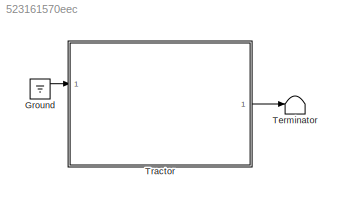
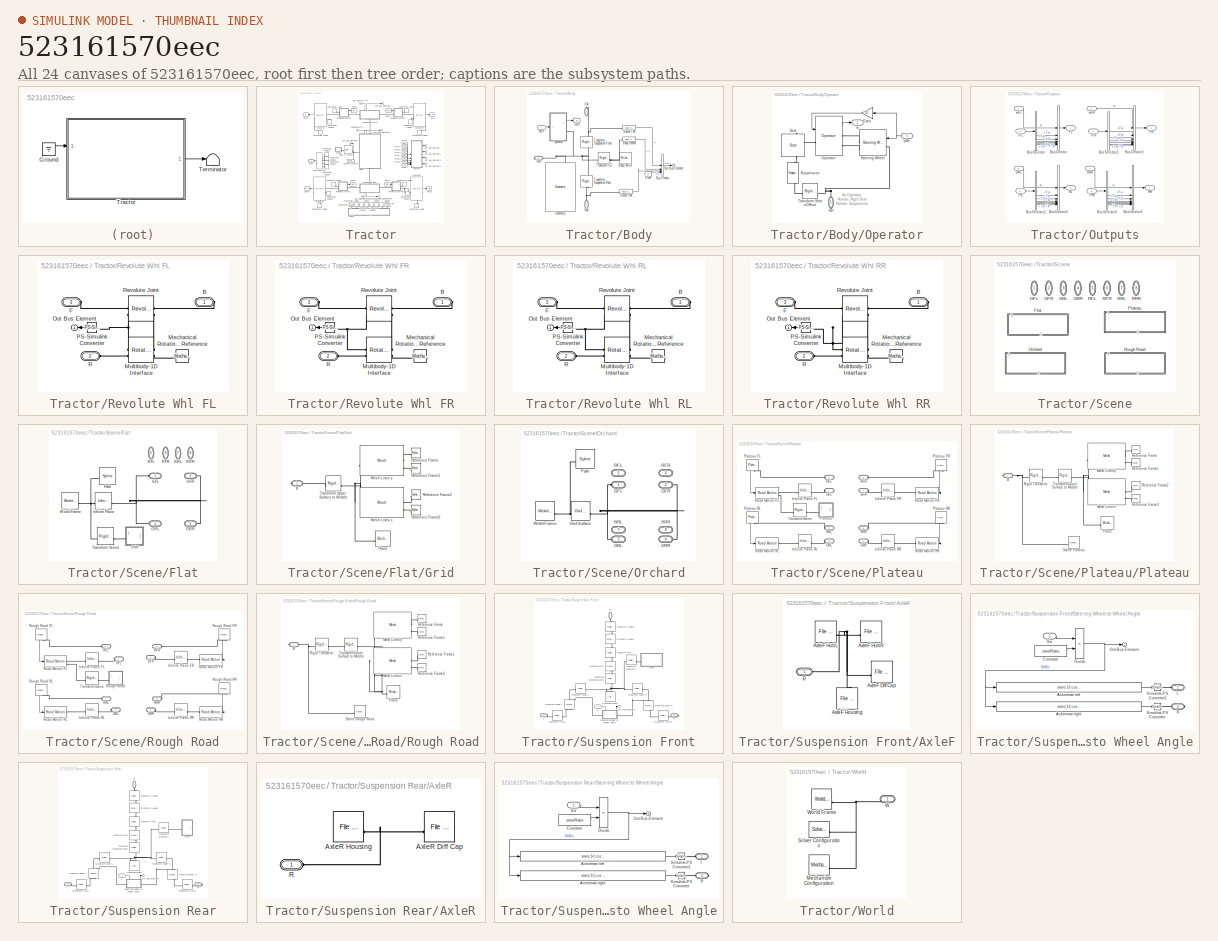
[diagram: thumbnail index - all 24 canvases of the model, root first then tree order]
MODEL slx_523161570eec
KIND model
CONFIG AbsTol = 1e-3
CONFIG EnableMultiTasking = on
CONFIG SolverName = VariableStepAuto
BLOCK [Ground] Ground
  NameLocation = right
BLOCK [Terminator] Terminator
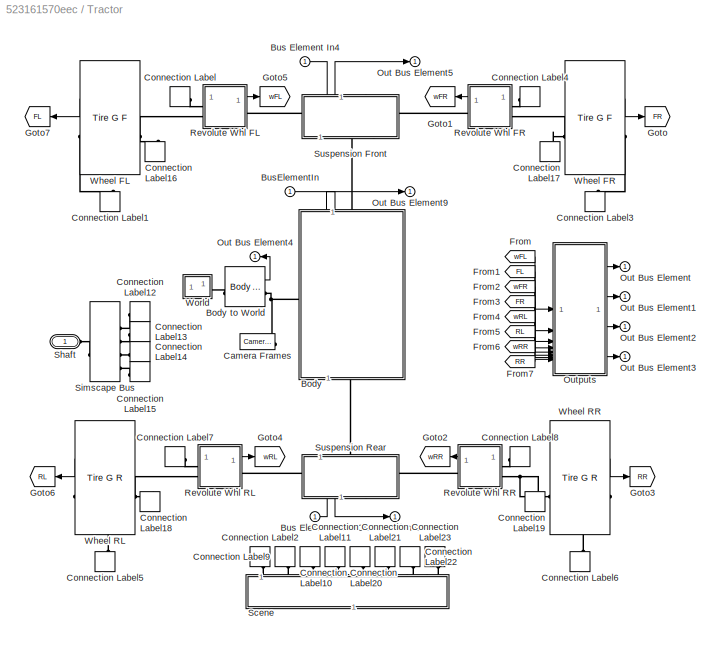
BLOCK [SubSystem] Tractor
BLOCK [SubSystem] Tractor/Body
  NameLocation = right
  PortSchema = {"entries":[{"content":{"sides":[{"content":{"connectorIds":["LConn1"]},"type":"ConnectorPlacement.EquallySpacedRectSide","uuid":"96da581a-446c-43fa-8064-b9be639c090a"},{"content":{"connectorIds":["Out1","RConn1","In1"],"side":"RIGHT"},"type":"ConnectorPlacement.EquallySpacedRectSide","uuid":"2c5988da-ae00-48b3-be94-fd9e5696b9c8"},{"content":{"side":"TOP"},"type":"ConnectorPlacement.EquallySpacedR...<+392ch>
BLOCK [Reference] Tractor/Body to World  REF=sm_vehicle_utilities_lib/Body to World  (lib defined in slx_7901a99a1966, slx_bde73e06ff5b)
  SourceBlock = sm_vehicle_utilities_lib/Body to World
  SourceType = Body to World
BLOCK [Reference] Tractor/Body/Body Inertia  REF=sm_lib/Body Elements/Brick Solid
  SourceBlock = sm_lib/Body Elements/Brick Solid
  SourceType = Brick Solid
BLOCK [Reference] Tractor/Body/Body Sensor  REF=sm_vehicle_utilities_lib/Body Sensor  (lib defined in slx_7901a99a1966, slx_bde73e06ff5b)
  SourceBlock = sm_vehicle_utilities_lib/Body Sensor
  SourceType = Measurements in Body Frame
BLOCK [BusCreator] Tractor/Body/Bus Creator
  DisplayOption = bar
  InheritFromInputs = on
  Inputs = 4
BLOCK [PMIOPort] Tractor/Body/FA
  NameLocation = right
  Port = 2
  Side = Right
BLOCK [From] Tractor/Body/From
  GotoTag = Dr
BLOCK [Reference] Tractor/Body/Geometry  REF=Tractor_Geometry/Geometry
  SourceBlock = Tractor_Geometry/Geometry
BLOCK [Goto] Tractor/Body/Goto
  GotoTag = Dr
BLOCK [SubSystem] Tractor/Body/Operator
  AttributesFormatString = %<popup_operator>
BLOCK [Gain] Tractor/Body/Operator/Gain
  Gain = 0.1
  NameLocation = top
BLOCK [Reference] Tractor/Body/Operator/Operator  REF=sm_vehicle_utilities_lib/Operator  (lib defined in slx_7901a99a1966, slx_bde73e06ff5b)
  AttributesFormatString = %<popup_operator>
  SourceBlock = sm_vehicle_utilities_lib/Operator
BLOCK [PMIOPort] Tractor/Body/Operator/Ref
  NameLocation = right
  Side = Right
BLOCK [Reference] Tractor/Body/Operator/Seat  REF=Tractor_Geometry/Seat
  NameLocation = left
  SourceBlock = Tractor_Geometry/Seat
BLOCK [Reference] Tractor/Body/Operator/Steering Wheel  REF=sm_vehicle_utilities_lib/Steering  (lib defined in slx_7901a99a1966, slx_bde73e06ff5b)
Wheel
  SourceBlock = sm_vehicle_utilities_lib/Steering\nWheel
BLOCK [Reference] Tractor/Body/Operator/Suspension  REF=sm_vehicle_utilities_lib/Suspension  (lib defined in slx_7901a99a1966, slx_bde73e06ff5b)
  AttributesFormatString = %<popup_suspension>
  NameLocation = left
  SourceBlock = sm_vehicle_utilities_lib/Suspension
BLOCK [Reference] Tractor/Body/Operator/Transform Seat xOffset  REF=sm_lib/Frames and
Transforms/Rigid
Transform
  SourceBlock = sm_lib/Frames and\nTransforms/Rigid\nTransform
  SourceType = Rigid\nTransform
BLOCK [Outport] Tractor/Body/Operator/m
  NameLocation = right
BLOCK [Inport] Tractor/Body/Operator/qStr
BLOCK [Outport] Tractor/Body/Out Bus Element
BLOCK [PMIOPort] Tractor/Body/RA
  NameLocation = right
  Side = Left
BLOCK [PMIOPort] Tractor/Body/Ref
  Port = 3
  Side = Right
BLOCK [Reference] Tractor/Body/Sensor FA  REF=sm_vehicle_utilities_lib/Body Sensor  (lib defined in slx_7901a99a1966, slx_bde73e06ff5b)
  SourceBlock = sm_vehicle_utilities_lib/Body Sensor
  SourceType = Measurements in Body Frame
BLOCK [Reference] Tractor/Body/Sensor RA  REF=sm_vehicle_utilities_lib/Body Sensor  (lib defined in slx_7901a99a1966, slx_bde73e06ff5b)
  SourceBlock = sm_vehicle_utilities_lib/Body Sensor
  SourceType = Measurements in Body Frame
BLOCK [Reference] Tractor/Body/Transform CG  REF=sm_lib/Frames and
Transforms/Rigid
Transform
  SourceBlock = sm_lib/Frames and\nTransforms/Rigid\nTransform
  SourceType = Rigid\nTransform
BLOCK [Reference] Tractor/Body/Transform Suspension Front  REF=sm_lib/Frames and
Transforms/Rigid
Transform
  NameLocation = right
  SourceBlock = sm_lib/Frames and\nTransforms/Rigid\nTransform
  SourceType = Rigid\nTransform
BLOCK [Reference] Tractor/Body/Transform Suspension Rear  REF=sm_lib/Frames and
Transforms/Rigid
Transform
  NameLocation = right
  SourceBlock = sm_lib/Frames and\nTransforms/Rigid\nTransform
  SourceType = Rigid\nTransform
BLOCK [Inport] Tractor/Body/qStr
BLOCK [Inport] Tractor/Bus Element In4
  NameLocation = top
BLOCK [Inport] Tractor/Bus Element In5
  NameLocation = top
BLOCK [Inport] Tractor/BusElementIn
BLOCK [Reference] Tractor/Camera Frames  REF=sm_vehicle_utilities_lib/Camera Frames  (lib defined in slx_7901a99a1966, slx_bde73e06ff5b)
  SourceBlock = sm_vehicle_utilities_lib/Camera Frames
  SourceType = Camera Frame Definitions
BLOCK [ConnectionLabel] Tractor/Connection Label
  Label = FL
BLOCK [ConnectionLabel] Tractor/Connection Label1
  Label = GFL
  NameLocation = right
BLOCK [ConnectionLabel] Tractor/Connection Label10
  Label = GRL
  NameLocation = left
BLOCK [ConnectionLabel] Tractor/Connection Label11
  Label = GRR
  NameLocation = left
BLOCK [ConnectionLabel] Tractor/Connection Label12
  Label = FL
  NameLocation = top
BLOCK [ConnectionLabel] Tractor/Connection Label13
  Label = FR
BLOCK [ConnectionLabel] Tractor/Connection Label14
  Label = RL
  NameLocation = top
BLOCK [ConnectionLabel] Tractor/Connection Label15
  Label = RR
BLOCK [ConnectionLabel] Tractor/Connection Label16
  Label = RFL
  NameLocation = right
BLOCK [ConnectionLabel] Tractor/Connection Label17
  Label = RFR
  NameLocation = right
BLOCK [ConnectionLabel] Tractor/Connection Label18
  Label = RRL
  NameLocation = right
BLOCK [ConnectionLabel] Tractor/Connection Label19
  Label = RRR
  NameLocation = right
BLOCK [ConnectionLabel] Tractor/Connection Label2
  Label = GFL
  NameLocation = left
BLOCK [ConnectionLabel] Tractor/Connection Label20
  Label = RFL
  NameLocation = left
BLOCK [ConnectionLabel] Tractor/Connection Label21
  Label = RFR
  NameLocation = left
BLOCK [ConnectionLabel] Tractor/Connection Label22
  Label = RRL
  NameLocation = left
BLOCK [ConnectionLabel] Tractor/Connection Label23
  Label = RRR
  NameLocation = left
BLOCK [ConnectionLabel] Tractor/Connection Label3
  Label = GFR
  NameLocation = right
BLOCK [ConnectionLabel] Tractor/Connection Label4
  Label = FR
BLOCK [ConnectionLabel] Tractor/Connection Label5
  Label = GRL
  NameLocation = right
BLOCK [ConnectionLabel] Tractor/Connection Label6
  Label = GRR
  NameLocation = right
BLOCK [ConnectionLabel] Tractor/Connection Label7
  Label = RL
BLOCK [ConnectionLabel] Tractor/Connection Label8
  Label = RR
BLOCK [ConnectionLabel] Tractor/Connection Label9
  Label = GFR
  NameLocation = left
BLOCK [From] Tractor/From
  GotoTag = wFL
BLOCK [From] Tractor/From1
  GotoTag = FL
BLOCK [From] Tractor/From2
  GotoTag = wFR
BLOCK [From] Tractor/From3
  GotoTag = FR
BLOCK [From] Tractor/From4
  GotoTag = wRL
BLOCK [From] Tractor/From5
  GotoTag = RL
BLOCK [From] Tractor/From6
  GotoTag = wRR
BLOCK [From] Tractor/From7
  GotoTag = RR
BLOCK [Goto] Tractor/Goto
  GotoTag = FR
BLOCK [Goto] Tractor/Goto1
  GotoTag = wFR
  NameLocation = top
BLOCK [Goto] Tractor/Goto2
  GotoTag = wRR
  NameLocation = top
BLOCK [Goto] Tractor/Goto3
  GotoTag = RR
BLOCK [Goto] Tractor/Goto4
  GotoTag = wRL
BLOCK [Goto] Tractor/Goto5
  GotoTag = wFL
BLOCK [Goto] Tractor/Goto6
  GotoTag = RL
BLOCK [Goto] Tractor/Goto7
  GotoTag = FL
BLOCK [Outport] Tractor/Out Bus Element
BLOCK [Outport] Tractor/Out Bus Element1
BLOCK [Outport] Tractor/Out Bus Element2
BLOCK [Outport] Tractor/Out Bus Element3
BLOCK [Outport] Tractor/Out Bus Element4
  NameLocation = top
BLOCK [Outport] Tractor/Out Bus Element5
  NameLocation = top
BLOCK [Outport] Tractor/Out Bus Element6
  NameLocation = top
BLOCK [Outport] Tractor/Out Bus Element9
BLOCK [SubSystem] Tractor/Outputs
BLOCK [BusCreator] Tractor/Outputs/Bus Creator
  DisplayOption = bar
  InheritFromInputs = on
  Inputs = 7
BLOCK [BusCreator] Tractor/Outputs/Bus Creator1
  DisplayOption = bar
  InheritFromInputs = on
  Inputs = 7
BLOCK [BusCreator] Tractor/Outputs/Bus Creator2
  DisplayOption = bar
  InheritFromInputs = on
  Inputs = 7
BLOCK [BusCreator] Tractor/Outputs/Bus Creator3
  DisplayOption = bar
  InheritFromInputs = on
  Inputs = 7
BLOCK [BusSelector] Tractor/Outputs/Bus Selector
  OutputSignals = Fx,Fy,Fz,Tx,Ty,Tz
BLOCK [BusSelector] Tractor/Outputs/Bus Selector1
  OutputSignals = Fx,Fy,Fz,Tx,Ty,Tz
BLOCK [BusSelector] Tractor/Outputs/Bus Selector2
  OutputSignals = Fx,Fy,Fz,Tx,Ty,Tz
BLOCK [BusSelector] Tractor/Outputs/Bus Selector3
  OutputSignals = Fx,Fy,Fz,Tx,Ty,Tz
BLOCK [Outport] Tractor/Outputs/FL
BLOCK [Outport] Tractor/Outputs/FR
  Port = 2
BLOCK [Outport] Tractor/Outputs/RL
  Port = 3
BLOCK [Outport] Tractor/Outputs/RR
  Port = 4
BLOCK [Inport] Tractor/Outputs/TFL
  Port = 2
BLOCK [Inport] Tractor/Outputs/TFR
  Port = 4
BLOCK [Inport] Tractor/Outputs/TRL
  Port = 6
BLOCK [Inport] Tractor/Outputs/TRR
  Port = 8
BLOCK [Inport] Tractor/Outputs/wFL
BLOCK [Inport] Tractor/Outputs/wFR
  Port = 3
BLOCK [Inport] Tractor/Outputs/wRL
  Port = 5
BLOCK [Inport] Tractor/Outputs/wRR
  Port = 7
BLOCK [SubSystem] Tractor/Revolute Whl FL
BLOCK [PMIOPort] Tractor/Revolute Whl FL/B
  Side = Right
BLOCK [PMIOPort] Tractor/Revolute Whl FL/F
  Port = 3
  Side = Left
BLOCK [Reference] Tractor/Revolute Whl FL/Mechanical Rotational Reference  REF=fl_lib/Mechanical/Rotational Elements/Mechanical
Rotational Reference
  NameLocation = top
  SourceBlock = fl_lib/Mechanical/Rotational Elements/Mechanical\nRotational Reference
  SourceType = Mechanical\nRotational Reference
BLOCK [Reference] Tractor/Revolute Whl FL/Multibody-1D Interface  REF=fl_lib/Mechanical/Multibody Interfaces/Rotational Multibody
Interface
  SourceBlock = fl_lib/Mechanical/Multibody Interfaces/Rotational Multibody\nInterface
  SourceType = Rotational Multibody\nInterface
BLOCK [Outport] Tractor/Revolute Whl FL/Out Bus Element
BLOCK [Reference] Tractor/Revolute Whl FL/PS-Simulink Converter  REF=nesl_utility/PS-Simulink
Converter
  SourceBlock = nesl_utility/PS-Simulink\nConverter
  SourceType = PS-Simulink\nConverter
BLOCK [PMIOPort] Tractor/Revolute Whl FL/R
  Port = 2
  Side = Left
BLOCK [Reference] Tractor/Revolute Whl FL/Revolute Joint  REF=sm_lib/Joints/Revolute Joint
  NameLocation = top
  SourceBlock = sm_lib/Joints/Revolute Joint
  SourceType = Revolute Joint
BLOCK [SubSystem] Tractor/Revolute Whl FR
BLOCK [PMIOPort] Tractor/Revolute Whl FR/B
  Side = Right
BLOCK [PMIOPort] Tractor/Revolute Whl FR/F
  Port = 3
  Side = Left
BLOCK [Reference] Tractor/Revolute Whl FR/Mechanical Rotational Reference  REF=fl_lib/Mechanical/Rotational Elements/Mechanical
Rotational Reference
  NameLocation = top
  SourceBlock = fl_lib/Mechanical/Rotational Elements/Mechanical\nRotational Reference
  SourceType = Mechanical\nRotational Reference
BLOCK [Reference] Tractor/Revolute Whl FR/Multibody-1D Interface  REF=fl_lib/Mechanical/Multibody Interfaces/Rotational Multibody
Interface
  SourceBlock = fl_lib/Mechanical/Multibody Interfaces/Rotational Multibody\nInterface
  SourceType = Rotational Multibody\nInterface
BLOCK [Outport] Tractor/Revolute Whl FR/Out Bus Element
BLOCK [Reference] Tractor/Revolute Whl FR/PS-Simulink Converter  REF=nesl_utility/PS-Simulink
Converter
  SourceBlock = nesl_utility/PS-Simulink\nConverter
  SourceType = PS-Simulink\nConverter
BLOCK [PMIOPort] Tractor/Revolute Whl FR/R
  Port = 2
  Side = Left
BLOCK [Reference] Tractor/Revolute Whl FR/Revolute Joint  REF=sm_lib/Joints/Revolute Joint
  NameLocation = top
  SourceBlock = sm_lib/Joints/Revolute Joint
  SourceType = Revolute Joint
BLOCK [SubSystem] Tractor/Revolute Whl RL
BLOCK [PMIOPort] Tractor/Revolute Whl RL/B
  Side = Right
BLOCK [PMIOPort] Tractor/Revolute Whl RL/F
  Port = 3
  Side = Left
BLOCK [Reference] Tractor/Revolute Whl RL/Mechanical Rotational Reference  REF=fl_lib/Mechanical/Rotational Elements/Mechanical
Rotational Reference
  NameLocation = top
  SourceBlock = fl_lib/Mechanical/Rotational Elements/Mechanical\nRotational Reference
  SourceType = Mechanical\nRotational Reference
BLOCK [Reference] Tractor/Revolute Whl RL/Multibody-1D Interface  REF=fl_lib/Mechanical/Multibody Interfaces/Rotational Multibody
Interface
  SourceBlock = fl_lib/Mechanical/Multibody Interfaces/Rotational Multibody\nInterface
  SourceType = Rotational Multibody\nInterface
BLOCK [Outport] Tractor/Revolute Whl RL/Out Bus Element
BLOCK [Reference] Tractor/Revolute Whl RL/PS-Simulink Converter  REF=nesl_utility/PS-Simulink
Converter
  SourceBlock = nesl_utility/PS-Simulink\nConverter
  SourceType = PS-Simulink\nConverter
BLOCK [PMIOPort] Tractor/Revolute Whl RL/R
  Port = 2
  Side = Left
BLOCK [Reference] Tractor/Revolute Whl RL/Revolute Joint  REF=sm_lib/Joints/Revolute Joint
  NameLocation = top
  SourceBlock = sm_lib/Joints/Revolute Joint
  SourceType = Revolute Joint
BLOCK [SubSystem] Tractor/Revolute Whl RR
BLOCK [PMIOPort] Tractor/Revolute Whl RR/B
  Side = Right
BLOCK [PMIOPort] Tractor/Revolute Whl RR/F
  Port = 3
  Side = Left
BLOCK [Reference] Tractor/Revolute Whl RR/Mechanical Rotational Reference  REF=fl_lib/Mechanical/Rotational Elements/Mechanical
Rotational Reference
  NameLocation = top
  SourceBlock = fl_lib/Mechanical/Rotational Elements/Mechanical\nRotational Reference
  SourceType = Mechanical\nRotational Reference
BLOCK [Reference] Tractor/Revolute Whl RR/Multibody-1D Interface  REF=fl_lib/Mechanical/Multibody Interfaces/Rotational Multibody
Interface
  SourceBlock = fl_lib/Mechanical/Multibody Interfaces/Rotational Multibody\nInterface
  SourceType = Rotational Multibody\nInterface
BLOCK [Outport] Tractor/Revolute Whl RR/Out Bus Element
BLOCK [Reference] Tractor/Revolute Whl RR/PS-Simulink Converter  REF=nesl_utility/PS-Simulink
Converter
  SourceBlock = nesl_utility/PS-Simulink\nConverter
  SourceType = PS-Simulink\nConverter
BLOCK [PMIOPort] Tractor/Revolute Whl RR/R
  Port = 2
  Side = Left
BLOCK [Reference] Tractor/Revolute Whl RR/Revolute Joint  REF=sm_lib/Joints/Revolute Joint
  NameLocation = top
  SourceBlock = sm_lib/Joints/Revolute Joint
  SourceType = Revolute Joint
BLOCK [SubSystem] Tractor/Scene
  AttributesFormatString = %<LabelModeActiveChoice>
  LabelModeActiveChoice = Flat
  NameLocation = left
  Variant = on
  VariantControl = Scene
  VariantControlMode = label
BLOCK [SubSystem] Tractor/Scene/Flat
  VariantControl = Flat
BLOCK [PMIOPort] Tractor/Scene/Flat/GFL
  Side = Left
BLOCK [PMIOPort] Tractor/Scene/Flat/GFR
  Port = 2
  Side = Left
BLOCK [PMIOPort] Tractor/Scene/Flat/GRL
  Port = 3
  Side = Left
BLOCK [PMIOPort] Tractor/Scene/Flat/GRR
  Port = 4
  Side = Left
BLOCK [SubSystem] Tractor/Scene/Flat/Grid
  VariantControl = Grid
BLOCK [PMIOPort] Tractor/Scene/Flat/Grid/B
  Side = Right
BLOCK [Reference] Tractor/Scene/Flat/Grid/Mesh Lines x  REF=sm_vehicle_utilities_lib/Mesh  (lib defined in slx_7901a99a1966, slx_bde73e06ff5b)
  SourceBlock = sm_vehicle_utilities_lib/Mesh
  SourceType = Rectangular Mesh
BLOCK [Reference] Tractor/Scene/Flat/Grid/Mesh Lines y   REF=sm_vehicle_utilities_lib/Mesh  (lib defined in slx_7901a99a1966, slx_bde73e06ff5b)
  SourceBlock = sm_vehicle_utilities_lib/Mesh
  SourceType = Rectangular Mesh
BLOCK [Reference] Tractor/Scene/Flat/Grid/Plane  REF=sm_lib/Body Elements/Brick Solid
  SourceBlock = sm_lib/Body Elements/Brick Solid
  SourceType = Brick Solid
BLOCK [Reference] Tractor/Scene/Flat/Grid/Reference Frame  REF=sm_lib/Frames and
Transforms/Reference
Frame
  NameLocation = top
  SourceBlock = sm_lib/Frames and\nTransforms/Reference\nFrame
  SourceType = Reference\nFrame
BLOCK [Reference] Tractor/Scene/Flat/Grid/Reference Frame1  REF=sm_lib/Frames and
Transforms/Reference
Frame
  NameLocation = top
  SourceBlock = sm_lib/Frames and\nTransforms/Reference\nFrame
  SourceType = Reference\nFrame
BLOCK [Reference] Tractor/Scene/Flat/Grid/Reference Frame2  REF=sm_lib/Frames and
Transforms/Reference
Frame
  NameLocation = top
  SourceBlock = sm_lib/Frames and\nTransforms/Reference\nFrame
  SourceType = Reference\nFrame
BLOCK [Reference] Tractor/Scene/Flat/Grid/Reference Frame3  REF=sm_lib/Frames and
Transforms/Reference
Frame
  SourceBlock = sm_lib/Frames and\nTransforms/Reference\nFrame
  SourceType = Reference\nFrame
BLOCK [Reference] Tractor/Scene/Flat/Grid/Transform Upper Surface to Middle  REF=sm_lib/Frames and
Transforms/Rigid
Transform
  SourceBlock = sm_lib/Frames and\nTransforms/Rigid\nTransform
  SourceType = Rigid\nTransform
BLOCK [Reference] Tractor/Scene/Flat/Infinite Plane  REF=sm_lib/Curves and Surfaces/Infinite Plane
  SourceBlock = sm_lib/Curves and Surfaces/Infinite Plane
  SourceType = Infinite Plane
BLOCK [Reference] Tractor/Scene/Flat/Path  REF=sm_lib/Curves and Surfaces/Spline
  NameLocation = top
  SourceBlock = sm_lib/Curves and Surfaces/Spline
  SourceType = Spline
BLOCK [PMIOPort] Tractor/Scene/Flat/RFL
  NameLocation = top
  Port = 5
  Side = Left
BLOCK [PMIOPort] Tractor/Scene/Flat/RFR
  NameLocation = top
  Port = 6
  Side = Left
BLOCK [PMIOPort] Tractor/Scene/Flat/RRL
  NameLocation = top
  Port = 7
  Side = Left
BLOCK [PMIOPort] Tractor/Scene/Flat/RRR
  NameLocation = top
  Port = 8
  Side = Left
BLOCK [Reference] Tractor/Scene/Flat/Transform Scene  REF=sm_lib/Frames and
Transforms/Rigid
Transform
  SourceBlock = sm_lib/Frames and\nTransforms/Rigid\nTransform
  SourceType = Rigid\nTransform
BLOCK [Reference] Tractor/Scene/Flat/World Frame  REF=sm_lib/Frames and
Transforms/World Frame
  SourceBlock = sm_lib/Frames and\nTransforms/World Frame
  SourceType = World Frame
BLOCK [PMIOPort] Tractor/Scene/GFL
  NameLocation = top
  Side = Left
BLOCK [PMIOPort] Tractor/Scene/GFR
  NameLocation = top
  Port = 2
  Side = Left
BLOCK [PMIOPort] Tractor/Scene/GRL
  NameLocation = top
  Port = 3
  Side = Left
BLOCK [PMIOPort] Tractor/Scene/GRR
  NameLocation = top
  Port = 4
  Side = Left
BLOCK [SubSystem] Tractor/Scene/Orchard
  VariantControl = Orchard
BLOCK [PMIOPort] Tractor/Scene/Orchard/GFL
  NameLocation = right
  Side = Left
BLOCK [PMIOPort] Tractor/Scene/Orchard/GFR
  NameLocation = left
  Port = 2
  Side = Left
BLOCK [PMIOPort] Tractor/Scene/Orchard/GRL
  NameLocation = right
  Port = 3
  Side = Left
BLOCK [PMIOPort] Tractor/Scene/Orchard/GRR
  NameLocation = left
  Port = 4
  Side = Left
BLOCK [Reference] Tractor/Scene/Orchard/Grid Surface  REF=sm_lib/Curves and Surfaces/Grid Surface
  SourceBlock = sm_lib/Curves and Surfaces/Grid Surface
  SourceType = Grid Surface
BLOCK [Reference] Tractor/Scene/Orchard/Path  REF=sm_lib/Curves and Surfaces/Spline
  NameLocation = top
  SourceBlock = sm_lib/Curves and Surfaces/Spline
  SourceType = Spline
BLOCK [PMIOPort] Tractor/Scene/Orchard/RFL
  NameLocation = right
  Port = 5
  Side = Left
BLOCK [PMIOPort] Tractor/Scene/Orchard/RFR
  NameLocation = left
  Port = 6
  Side = Left
BLOCK [PMIOPort] Tractor/Scene/Orchard/RRL
  NameLocation = right
  Port = 7
  Side = Left
BLOCK [PMIOPort] Tractor/Scene/Orchard/RRR
  NameLocation = left
  Port = 8
  Side = Left
BLOCK [Reference] Tractor/Scene/Orchard/World Frame  REF=sm_lib/Frames and
Transforms/World Frame
  SourceBlock = sm_lib/Frames and\nTransforms/World Frame
  SourceType = World Frame
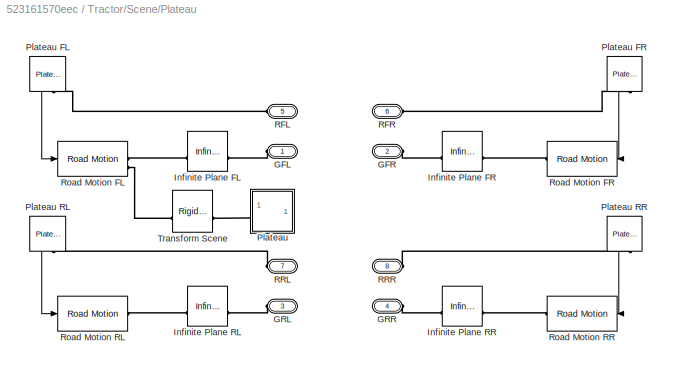
BLOCK [SubSystem] Tractor/Scene/Plateau
  VariantControl = Plateau
BLOCK [PMIOPort] Tractor/Scene/Plateau/GFL
  Side = Left
BLOCK [PMIOPort] Tractor/Scene/Plateau/GFR
  Port = 2
  Side = Left
BLOCK [PMIOPort] Tractor/Scene/Plateau/GRL
  Port = 3
  Side = Left
BLOCK [PMIOPort] Tractor/Scene/Plateau/GRR
  Port = 4
  Side = Left
BLOCK [Reference] Tractor/Scene/Plateau/Infinite Plane FL  REF=sm_lib/Curves and Surfaces/Infinite Plane
  SourceBlock = sm_lib/Curves and Surfaces/Infinite Plane
  SourceType = Infinite Plane
BLOCK [Reference] Tractor/Scene/Plateau/Infinite Plane FR  REF=sm_lib/Curves and Surfaces/Infinite Plane
  SourceBlock = sm_lib/Curves and Surfaces/Infinite Plane
  SourceType = Infinite Plane
BLOCK [Reference] Tractor/Scene/Plateau/Infinite Plane RL  REF=sm_lib/Curves and Surfaces/Infinite Plane
  SourceBlock = sm_lib/Curves and Surfaces/Infinite Plane
  SourceType = Infinite Plane
BLOCK [Reference] Tractor/Scene/Plateau/Infinite Plane RR  REF=sm_lib/Curves and Surfaces/Infinite Plane
  SourceBlock = sm_lib/Curves and Surfaces/Infinite Plane
  SourceType = Infinite Plane
BLOCK [SubSystem] Tractor/Scene/Plateau/Plateau
  VariantControl = Plateau
BLOCK [Reference] Tractor/Scene/Plateau/Plateau FL  REF=sm_vehicle_utilities_lib/Plateau  (lib defined in slx_7901a99a1966, slx_bde73e06ff5b)
  NameLocation = right
  SourceBlock = sm_vehicle_utilities_lib/Plateau
BLOCK [Reference] Tractor/Scene/Plateau/Plateau FR  REF=sm_vehicle_utilities_lib/Plateau  (lib defined in slx_7901a99a1966, slx_bde73e06ff5b)
  NameLocation = left
  SourceBlock = sm_vehicle_utilities_lib/Plateau
BLOCK [Reference] Tractor/Scene/Plateau/Plateau RL  REF=sm_vehicle_utilities_lib/Plateau  (lib defined in slx_7901a99a1966, slx_bde73e06ff5b)
  NameLocation = right
  SourceBlock = sm_vehicle_utilities_lib/Plateau
BLOCK [Reference] Tractor/Scene/Plateau/Plateau RR  REF=sm_vehicle_utilities_lib/Plateau  (lib defined in slx_7901a99a1966, slx_bde73e06ff5b)
  NameLocation = left
  SourceBlock = sm_vehicle_utilities_lib/Plateau
BLOCK [PMIOPort] Tractor/Scene/Plateau/Plateau/B
  Side = Right
BLOCK [Reference] Tractor/Scene/Plateau/Plateau/Mesh Lines x  REF=sm_vehicle_utilities_lib/Mesh  (lib defined in slx_7901a99a1966, slx_bde73e06ff5b)
  SourceBlock = sm_vehicle_utilities_lib/Mesh
  SourceType = Rectangular Mesh
BLOCK [Reference] Tractor/Scene/Plateau/Plateau/Mesh Lines y   REF=sm_vehicle_utilities_lib/Mesh  (lib defined in slx_7901a99a1966, slx_bde73e06ff5b)
  SourceBlock = sm_vehicle_utilities_lib/Mesh
  SourceType = Rectangular Mesh
BLOCK [Reference] Tractor/Scene/Plateau/Plateau/Plane  REF=sm_lib/Body Elements/Brick Solid
  SourceBlock = sm_lib/Body Elements/Brick Solid
  SourceType = Brick Solid
BLOCK [Reference] Tractor/Scene/Plateau/Plateau/Reference Frame  REF=sm_lib/Frames and
Transforms/Reference
Frame
  NameLocation = top
  SourceBlock = sm_lib/Frames and\nTransforms/Reference\nFrame
  SourceType = Reference\nFrame
BLOCK [Reference] Tractor/Scene/Plateau/Plateau/Reference Frame1  REF=sm_lib/Frames and
Transforms/Reference
Frame
  NameLocation = top
  SourceBlock = sm_lib/Frames and\nTransforms/Reference\nFrame
  SourceType = Reference\nFrame
BLOCK [Reference] Tractor/Scene/Plateau/Plateau/Reference Frame2  REF=sm_lib/Frames and
Transforms/Reference
Frame
  NameLocation = top
  SourceBlock = sm_lib/Frames and\nTransforms/Reference\nFrame
  SourceType = Reference\nFrame
BLOCK [Reference] Tractor/Scene/Plateau/Plateau/Reference Frame3  REF=sm_lib/Frames and
Transforms/Reference
Frame
  SourceBlock = sm_lib/Frames and\nTransforms/Reference\nFrame
  SourceType = Reference\nFrame
BLOCK [Reference] Tractor/Scene/Plateau/Plateau/Rigid Transform  REF=sm_lib/Frames and
Transforms/Rigid
Transform
  SourceBlock = sm_lib/Frames and\nTransforms/Rigid\nTransform
  SourceType = Rigid\nTransform
BLOCK [Reference] Tractor/Scene/Plateau/Plateau/Scene Plateau  REF=sm_vehicle_utilities_lib/Scene Plateau  (lib defined in slx_7901a99a1966, slx_bde73e06ff5b)
  SourceBlock = sm_vehicle_utilities_lib/Scene Plateau
BLOCK [Reference] Tractor/Scene/Plateau/Plateau/Transform Upper Surface to Middle  REF=sm_lib/Frames and
Transforms/Rigid
Transform
  SourceBlock = sm_lib/Frames and\nTransforms/Rigid\nTransform
  SourceType = Rigid\nTransform
BLOCK [PMIOPort] Tractor/Scene/Plateau/RFL
  Port = 5
  Side = Left
BLOCK [PMIOPort] Tractor/Scene/Plateau/RFR
  Port = 6
  Side = Left
BLOCK [PMIOPort] Tractor/Scene/Plateau/RRL
  Port = 7
  Side = Left
BLOCK [PMIOPort] Tractor/Scene/Plateau/RRR
  Port = 8
  Side = Left
BLOCK [Reference] Tractor/Scene/Plateau/Road Motion FL  REF=sm_vehicle_utilities_lib/Road Motion  (lib defined in slx_7901a99a1966, slx_bde73e06ff5b)
  SourceBlock = sm_vehicle_utilities_lib/Road Motion
  SourceType = SubSystem
BLOCK [Reference] Tractor/Scene/Plateau/Road Motion FR  REF=sm_vehicle_utilities_lib/Road Motion  (lib defined in slx_7901a99a1966, slx_bde73e06ff5b)
  SourceBlock = sm_vehicle_utilities_lib/Road Motion
  SourceType = SubSystem
BLOCK [Reference] Tractor/Scene/Plateau/Road Motion RL  REF=sm_vehicle_utilities_lib/Road Motion  (lib defined in slx_7901a99a1966, slx_bde73e06ff5b)
  SourceBlock = sm_vehicle_utilities_lib/Road Motion
  SourceType = SubSystem
BLOCK [Reference] Tractor/Scene/Plateau/Road Motion RR  REF=sm_vehicle_utilities_lib/Road Motion  (lib defined in slx_7901a99a1966, slx_bde73e06ff5b)
  SourceBlock = sm_vehicle_utilities_lib/Road Motion
  SourceType = SubSystem
BLOCK [Reference] Tractor/Scene/Plateau/Transform Scene  REF=sm_lib/Frames and
Transforms/Rigid
Transform
  SourceBlock = sm_lib/Frames and\nTransforms/Rigid\nTransform
  SourceType = Rigid\nTransform
BLOCK [PMIOPort] Tractor/Scene/RFL
  NameLocation = top
  Port = 5
  Side = Left
BLOCK [PMIOPort] Tractor/Scene/RFR
  NameLocation = top
  Port = 6
  Side = Left
BLOCK [PMIOPort] Tractor/Scene/RRL
  NameLocation = top
  Port = 7
  Side = Left
BLOCK [PMIOPort] Tractor/Scene/RRR
  NameLocation = top
  Port = 8
  Side = Left
BLOCK [SubSystem] Tractor/Scene/Rough Road
  VariantControl = Rough_Road
BLOCK [PMIOPort] Tractor/Scene/Rough Road/GFL
  Side = Left
BLOCK [PMIOPort] Tractor/Scene/Rough Road/GFR
  Port = 2
  Side = Left
BLOCK [PMIOPort] Tractor/Scene/Rough Road/GRL
  Port = 3
  Side = Left
BLOCK [PMIOPort] Tractor/Scene/Rough Road/GRR
  Port = 4
  Side = Left
BLOCK [Reference] Tractor/Scene/Rough Road/Infinite Plane FL  REF=sm_lib/Curves and Surfaces/Infinite Plane
  SourceBlock = sm_lib/Curves and Surfaces/Infinite Plane
  SourceType = Infinite Plane
BLOCK [Reference] Tractor/Scene/Rough Road/Infinite Plane FR  REF=sm_lib/Curves and Surfaces/Infinite Plane
  SourceBlock = sm_lib/Curves and Surfaces/Infinite Plane
  SourceType = Infinite Plane
BLOCK [Reference] Tractor/Scene/Rough Road/Infinite Plane RL  REF=sm_lib/Curves and Surfaces/Infinite Plane
  SourceBlock = sm_lib/Curves and Surfaces/Infinite Plane
  SourceType = Infinite Plane
BLOCK [Reference] Tractor/Scene/Rough Road/Infinite Plane RR  REF=sm_lib/Curves and Surfaces/Infinite Plane
  SourceBlock = sm_lib/Curves and Surfaces/Infinite Plane
  SourceType = Infinite Plane
BLOCK [PMIOPort] Tractor/Scene/Rough Road/RFL
  NameLocation = right
  Port = 5
  Side = Left
BLOCK [PMIOPort] Tractor/Scene/Rough Road/RFR
  NameLocation = left
  Port = 6
  Side = Left
BLOCK [PMIOPort] Tractor/Scene/Rough Road/RRL
  NameLocation = right
  Port = 7
  Side = Left
BLOCK [PMIOPort] Tractor/Scene/Rough Road/RRR
  NameLocation = left
  Port = 8
  Side = Left
BLOCK [Reference] Tractor/Scene/Rough Road/Road Motion FL  REF=sm_vehicle_utilities_lib/Road Motion  (lib defined in slx_7901a99a1966, slx_bde73e06ff5b)
  SourceBlock = sm_vehicle_utilities_lib/Road Motion
  SourceType = SubSystem
BLOCK [Reference] Tractor/Scene/Rough Road/Road Motion FR  REF=sm_vehicle_utilities_lib/Road Motion  (lib defined in slx_7901a99a1966, slx_bde73e06ff5b)
  SourceBlock = sm_vehicle_utilities_lib/Road Motion
  SourceType = SubSystem
BLOCK [Reference] Tractor/Scene/Rough Road/Road Motion RL  REF=sm_vehicle_utilities_lib/Road Motion  (lib defined in slx_7901a99a1966, slx_bde73e06ff5b)
  SourceBlock = sm_vehicle_utilities_lib/Road Motion
  SourceType = SubSystem
BLOCK [Reference] Tractor/Scene/Rough Road/Road Motion RR  REF=sm_vehicle_utilities_lib/Road Motion  (lib defined in slx_7901a99a1966, slx_bde73e06ff5b)
  SourceBlock = sm_vehicle_utilities_lib/Road Motion
  SourceType = SubSystem
BLOCK [SubSystem] Tractor/Scene/Rough Road/Rough Road
  VariantControl = Rough_Road
BLOCK [Reference] Tractor/Scene/Rough Road/Rough Road FL  REF=sm_vehicle_utilities_lib/Rough Road  (lib defined in slx_7901a99a1966, slx_bde73e06ff5b)
  NameLocation = right
  SourceBlock = sm_vehicle_utilities_lib/Rough Road
BLOCK [Reference] Tractor/Scene/Rough Road/Rough Road FR  REF=sm_vehicle_utilities_lib/Rough Road  (lib defined in slx_7901a99a1966, slx_bde73e06ff5b)
  NameLocation = left
  SourceBlock = sm_vehicle_utilities_lib/Rough Road
BLOCK [Reference] Tractor/Scene/Rough Road/Rough Road RL  REF=sm_vehicle_utilities_lib/Rough Road  (lib defined in slx_7901a99a1966, slx_bde73e06ff5b)
  NameLocation = right
  SourceBlock = sm_vehicle_utilities_lib/Rough Road
BLOCK [Reference] Tractor/Scene/Rough Road/Rough Road RR  REF=sm_vehicle_utilities_lib/Rough Road  (lib defined in slx_7901a99a1966, slx_bde73e06ff5b)
  NameLocation = left
  SourceBlock = sm_vehicle_utilities_lib/Rough Road
BLOCK [PMIOPort] Tractor/Scene/Rough Road/Rough Road/B
  Side = Right
BLOCK [Reference] Tractor/Scene/Rough Road/Rough Road/Mesh Lines x  REF=sm_vehicle_utilities_lib/Mesh  (lib defined in slx_7901a99a1966, slx_bde73e06ff5b)
  SourceBlock = sm_vehicle_utilities_lib/Mesh
  SourceType = Rectangular Mesh
BLOCK [Reference] Tractor/Scene/Rough Road/Rough Road/Mesh Lines y   REF=sm_vehicle_utilities_lib/Mesh  (lib defined in slx_7901a99a1966, slx_bde73e06ff5b)
  SourceBlock = sm_vehicle_utilities_lib/Mesh
  SourceType = Rectangular Mesh
BLOCK [Reference] Tractor/Scene/Rough Road/Rough Road/Plane  REF=sm_lib/Body Elements/Brick Solid
  SourceBlock = sm_lib/Body Elements/Brick Solid
  SourceType = Brick Solid
BLOCK [Reference] Tractor/Scene/Rough Road/Rough Road/Reference Frame  REF=sm_lib/Frames and
Transforms/Reference
Frame
  NameLocation = top
  SourceBlock = sm_lib/Frames and\nTransforms/Reference\nFrame
  SourceType = Reference\nFrame
BLOCK [Reference] Tractor/Scene/Rough Road/Rough Road/Reference Frame1  REF=sm_lib/Frames and
Transforms/Reference
Frame
  NameLocation = top
  SourceBlock = sm_lib/Frames and\nTransforms/Reference\nFrame
  SourceType = Reference\nFrame
BLOCK [Reference] Tractor/Scene/Rough Road/Rough Road/Reference Frame2  REF=sm_lib/Frames and
Transforms/Reference
Frame
  NameLocation = top
  SourceBlock = sm_lib/Frames and\nTransforms/Reference\nFrame
  SourceType = Reference\nFrame
BLOCK [Reference] Tractor/Scene/Rough Road/Rough Road/Reference Frame3  REF=sm_lib/Frames and
Transforms/Reference
Frame
  SourceBlock = sm_lib/Frames and\nTransforms/Reference\nFrame
  SourceType = Reference\nFrame
BLOCK [Reference] Tractor/Scene/Rough Road/Rough Road/Rigid Transform  REF=sm_lib/Frames and
Transforms/Rigid
Transform
  SourceBlock = sm_lib/Frames and\nTransforms/Rigid\nTransform
  SourceType = Rigid\nTransform
BLOCK [Reference] Tractor/Scene/Rough Road/Rough Road/Scene Rough Road  REF=sm_vehicle_utilities_lib/Scene Plateau  (lib defined in slx_7901a99a1966, slx_bde73e06ff5b)
  SourceBlock = sm_vehicle_utilities_lib/Scene Plateau
BLOCK [Reference] Tractor/Scene/Rough Road/Rough Road/Transform Upper Surface to Middle  REF=sm_lib/Frames and
Transforms/Rigid
Transform
  SourceBlock = sm_lib/Frames and\nTransforms/Rigid\nTransform
  SourceType = Rigid\nTransform
BLOCK [Reference] Tractor/Scene/Rough Road/Transform Scene  REF=sm_lib/Frames and
Transforms/Rigid
Transform
  SourceBlock = sm_lib/Frames and\nTransforms/Rigid\nTransform
  SourceType = Rigid\nTransform
BLOCK [PMIOPort] Tractor/Shaft
  Side = Left
BLOCK [SimscapeBus] Tractor/Simscape Bus
  HierarchyStrings = FL;FR;RL;RR
  NameLocation = top
BLOCK [SubSystem] Tractor/Suspension Front
  PortSchema = {"entries":[{"content":{"sides":[{"content":{"connectorIds":["LConn1"]},"type":"ConnectorPlacement.EquallySpacedRectSide","uuid":"0af81f34-82de-4f02-a8a7-ec45be82faea"},{"content":{"connectorIds":["In1","Out1"],"side":"RIGHT"},"type":"ConnectorPlacement.EquallySpacedRectSide","uuid":"9bc48957-2707-4e2f-b988-a5743aaf8f58"},{"content":{"connectorIds":["LConn2"],"side":"TOP"},"type":"ConnectorPlaceme...<+409ch>
BLOCK [SubSystem] Tractor/Suspension Front/AxleF
BLOCK [Reference] Tractor/Suspension Front/AxleF/AxleF Diff Cap  REF=sm_lib/Body Elements/File Solid
  SourceBlock = sm_lib/Body Elements/File Solid
  SourceType = File Solid
BLOCK [Reference] Tractor/Suspension Front/AxleF/AxleF Housing  REF=sm_lib/Body Elements/File Solid
  SourceBlock = sm_lib/Body Elements/File Solid
  SourceType = File Solid
BLOCK [Reference] Tractor/Suspension Front/AxleF/AxleF HubL  REF=sm_lib/Body Elements/File Solid
  SourceBlock = sm_lib/Body Elements/File Solid
  SourceType = File Solid
BLOCK [Reference] Tractor/Suspension Front/AxleF/AxleF HubR  REF=sm_lib/Body Elements/File Solid
  SourceBlock = sm_lib/Body Elements/File Solid
  SourceType = File Solid
BLOCK [PMIOPort] Tractor/Suspension Front/AxleF/R
  Side = Left
BLOCK [PMIOPort] Tractor/Suspension Front/B
  NameLocation = left
  Side = Left
BLOCK [PMIOPort] Tractor/Suspension Front/L
  Port = 2
  Side = Left
BLOCK [Outport] Tractor/Suspension Front/Out Bus Element
BLOCK [Reference] Tractor/Suspension Front/Prismatic Heave  REF=sm_lib/Joints/Prismatic
Joint
  NameLocation = left
  SourceBlock = sm_lib/Joints/Prismatic\nJoint
  SourceType = Prismatic\nJoint
BLOCK [PMIOPort] Tractor/Suspension Front/R
  Port = 3
  Side = Right
BLOCK [Reference] Tractor/Suspension Front/Revolute Roll  REF=sm_lib/Joints/Revolute Joint
  NameLocation = left
  SourceBlock = sm_lib/Joints/Revolute Joint
  SourceType = Revolute Joint
BLOCK [Reference] Tractor/Suspension Front/Revolute Steer L  REF=sm_lib/Joints/Revolute Joint
  NameLocation = left
  SourceBlock = sm_lib/Joints/Revolute Joint
  SourceType = Revolute Joint
BLOCK [Reference] Tractor/Suspension Front/Revolute Steer R  REF=sm_lib/Joints/Revolute Joint
  NameLocation = right
  SourceBlock = sm_lib/Joints/Revolute Joint
  SourceType = Revolute Joint
BLOCK [SubSystem] Tractor/Suspension Front/Steering Wheel to Wheel Angle
  PortSchema = {"entries":[{"content":{"sides":[{"content":{"connectorIds":["LConn1"]},"type":"ConnectorPlacement.EquallySpacedRectSide","uuid":"65a6d75a-79bf-476b-9435-04bcf6c2ef18"},{"content":{"connectorIds":["RConn1"],"side":"RIGHT"},"type":"ConnectorPlacement.EquallySpacedRectSide","uuid":"4d91bb65-021e-4e19-8917-9509e9fd2683"},{"content":{"connectorIds":["In1","Out1"],"side":"TOP"},"type":"ConnectorPlaceme...<+257ch>
BLOCK [Fcn] Tractor/Suspension Front/Steering Wheel to Wheel Angle/Ackerman left
  Expr = atan( 1/( cos(u+eps)/sin(u+eps) - yTrack/(2*wheelbase) ) )
BLOCK [Fcn] Tractor/Suspension Front/Steering Wheel to Wheel Angle/Ackerman right
  Expr = atan( 1/( cos(u+eps)/sin(u+eps) + yTrack/(2*wheelbase) ) )
BLOCK [Constant] Tractor/Suspension Front/Steering Wheel to Wheel Angle/Constant
  Value = steerRatio
BLOCK [Product] Tractor/Suspension Front/Steering Wheel to Wheel Angle/Divide
  Inputs = */
BLOCK [PMIOPort] Tractor/Suspension Front/Steering Wheel to Wheel Angle/L
  NameLocation = top
  Side = Left
BLOCK [Outport] Tractor/Suspension Front/Steering Wheel to Wheel Angle/Out Bus Element
BLOCK [PMIOPort] Tractor/Suspension Front/Steering Wheel to Wheel Angle/R
  NameLocation = top
  Port = 2
  Side = Right
BLOCK [Reference] Tractor/Suspension Front/Steering Wheel to Wheel Angle/Simulink-PS Converter  REF=nesl_utility/Simulink-PS
Converter
  NameLocation = top
  SourceBlock = nesl_utility/Simulink-PS\nConverter
  SourceType = Simulink-PS\nConverter
BLOCK [Reference] Tractor/Suspension Front/Steering Wheel to Wheel Angle/Simulink-PS Converter1  REF=nesl_utility/Simulink-PS
Converter
  NameLocation = top
  SourceBlock = nesl_utility/Simulink-PS\nConverter
  SourceType = Simulink-PS\nConverter
BLOCK [Inport] Tractor/Suspension Front/Steering Wheel to Wheel Angle/Str
BLOCK [Reference] Tractor/Suspension Front/Transform Geometry  REF=sm_lib/Frames and
Transforms/Rigid
Transform
  SourceBlock = sm_lib/Frames and\nTransforms/Rigid\nTransform
  SourceType = Rigid\nTransform
BLOCK [Reference] Tractor/Suspension Front/Transform Heave  REF=sm_lib/Frames and
Transforms/Rigid
Transform
  NameLocation = left
  SourceBlock = sm_lib/Frames and\nTransforms/Rigid\nTransform
  SourceType = Rigid\nTransform
BLOCK [Reference] Tractor/Suspension Front/Transform Hub L  REF=sm_lib/Frames and
Transforms/Rigid
Transform
  SourceBlock = sm_lib/Frames and\nTransforms/Rigid\nTransform
  SourceType = Rigid\nTransform
BLOCK [Reference] Tractor/Suspension Front/Transform Hub R  REF=sm_lib/Frames and
Transforms/Rigid
Transform
  SourceBlock = sm_lib/Frames and\nTransforms/Rigid\nTransform
  SourceType = Rigid\nTransform
BLOCK [Reference] Tractor/Suspension Front/Transform Roll  REF=sm_lib/Frames and
Transforms/Rigid
Transform
  NameLocation = left
  SourceBlock = sm_lib/Frames and\nTransforms/Rigid\nTransform
  SourceType = Rigid\nTransform
BLOCK [Reference] Tractor/Suspension Front/Transform Steer L  REF=sm_lib/Frames and
Transforms/Rigid
Transform
  NameLocation = top
  SourceBlock = sm_lib/Frames and\nTransforms/Rigid\nTransform
  SourceType = Rigid\nTransform
BLOCK [Reference] Tractor/Suspension Front/Transform Steer R  REF=sm_lib/Frames and
Transforms/Rigid
Transform
  NameLocation = top
  SourceBlock = sm_lib/Frames and\nTransforms/Rigid\nTransform
  SourceType = Rigid\nTransform
BLOCK [Reference] Tractor/Suspension Front/Transform Unsprung Mass  REF=sm_lib/Frames and
Transforms/Rigid
Transform
  NameLocation = left
  SourceBlock = sm_lib/Frames and\nTransforms/Rigid\nTransform
  SourceType = Rigid\nTransform
BLOCK [Reference] Tractor/Suspension Front/Unsprung Mass  REF=sm_lib/Body Elements/Cylindrical Solid
  NameLocation = left
  SourceBlock = sm_lib/Body Elements/Cylindrical Solid
  SourceType = Cylindrical Solid
BLOCK [Inport] Tractor/Suspension Front/s
BLOCK [SubSystem] Tractor/Suspension Rear
  NameLocation = top
  PortSchema = {"entries":[{"content":{"sides":[{"content":{"connectorIds":["LConn1"]},"type":"ConnectorPlacement.EquallySpacedRectSide","uuid":"0af81f34-82de-4f02-a8a7-ec45be82faea"},{"content":{"connectorIds":["In1","Out1"],"side":"RIGHT"},"type":"ConnectorPlacement.EquallySpacedRectSide","uuid":"9bc48957-2707-4e2f-b988-a5743aaf8f58"},{"content":{"connectorIds":["LConn2"],"side":"TOP"},"type":"ConnectorPlaceme...<+409ch>
BLOCK [SubSystem] Tractor/Suspension Rear/AxleR
BLOCK [Reference] Tractor/Suspension Rear/AxleR/AxleR Diff Cap  REF=sm_lib/Body Elements/File Solid
  SourceBlock = sm_lib/Body Elements/File Solid
  SourceType = File Solid
BLOCK [Reference] Tractor/Suspension Rear/AxleR/AxleR Housing  REF=sm_lib/Body Elements/File Solid
  SourceBlock = sm_lib/Body Elements/File Solid
  SourceType = File Solid
BLOCK [PMIOPort] Tractor/Suspension Rear/AxleR/R
  Side = Left
BLOCK [PMIOPort] Tractor/Suspension Rear/B
  NameLocation = left
  Side = Left
BLOCK [PMIOPort] Tractor/Suspension Rear/L
  Port = 2
  Side = Left
BLOCK [Outport] Tractor/Suspension Rear/Out Bus Element
BLOCK [Reference] Tractor/Suspension Rear/Prismatic Heave  REF=sm_lib/Joints/Prismatic
Joint
  NameLocation = left
  SourceBlock = sm_lib/Joints/Prismatic\nJoint
  SourceType = Prismatic\nJoint
BLOCK [PMIOPort] Tractor/Suspension Rear/R
  Port = 3
  Side = Right
BLOCK [Reference] Tractor/Suspension Rear/Revolute Roll  REF=sm_lib/Joints/Revolute Joint
  NameLocation = left
  SourceBlock = sm_lib/Joints/Revolute Joint
  SourceType = Revolute Joint
BLOCK [Reference] Tractor/Suspension Rear/Revolute Steer L  REF=sm_lib/Joints/Revolute Joint
  NameLocation = left
  SourceBlock = sm_lib/Joints/Revolute Joint
  SourceType = Revolute Joint
BLOCK [Reference] Tractor/Suspension Rear/Revolute Steer R  REF=sm_lib/Joints/Revolute Joint
  NameLocation = right
  SourceBlock = sm_lib/Joints/Revolute Joint
  SourceType = Revolute Joint
BLOCK [SubSystem] Tractor/Suspension Rear/Steering Wheel to Wheel Angle
  PortSchema = {"entries":[{"content":{"sides":[{"content":{"connectorIds":["LConn1"]},"type":"ConnectorPlacement.EquallySpacedRectSide","uuid":"65a6d75a-79bf-476b-9435-04bcf6c2ef18"},{"content":{"connectorIds":["RConn1"],"side":"RIGHT"},"type":"ConnectorPlacement.EquallySpacedRectSide","uuid":"4d91bb65-021e-4e19-8917-9509e9fd2683"},{"content":{"connectorIds":["In1","Out1"],"side":"TOP"},"type":"ConnectorPlaceme...<+257ch>
BLOCK [Fcn] Tractor/Suspension Rear/Steering Wheel to Wheel Angle/Ackerman left
  Expr = atan( 1/( cos(u+eps)/sin(u+eps) - yTrack/(2*wheelbase) ) )
BLOCK [Fcn] Tractor/Suspension Rear/Steering Wheel to Wheel Angle/Ackerman right
  Expr = atan( 1/( cos(u+eps)/sin(u+eps) + yTrack/(2*wheelbase) ) )
BLOCK [Constant] Tractor/Suspension Rear/Steering Wheel to Wheel Angle/Constant
  Value = steerRatio
BLOCK [Product] Tractor/Suspension Rear/Steering Wheel to Wheel Angle/Divide
  Inputs = */
BLOCK [PMIOPort] Tractor/Suspension Rear/Steering Wheel to Wheel Angle/L
  NameLocation = top
  Side = Left
BLOCK [Outport] Tractor/Suspension Rear/Steering Wheel to Wheel Angle/Out Bus Element
BLOCK [PMIOPort] Tractor/Suspension Rear/Steering Wheel to Wheel Angle/R
  NameLocation = top
  Port = 2
  Side = Right
BLOCK [Reference] Tractor/Suspension Rear/Steering Wheel to Wheel Angle/Simulink-PS Converter  REF=nesl_utility/Simulink-PS
Converter
  NameLocation = top
  SourceBlock = nesl_utility/Simulink-PS\nConverter
  SourceType = Simulink-PS\nConverter
BLOCK [Reference] Tractor/Suspension Rear/Steering Wheel to Wheel Angle/Simulink-PS Converter1  REF=nesl_utility/Simulink-PS
Converter
  NameLocation = top
  SourceBlock = nesl_utility/Simulink-PS\nConverter
  SourceType = Simulink-PS\nConverter
BLOCK [Inport] Tractor/Suspension Rear/Steering Wheel to Wheel Angle/Str
BLOCK [Reference] Tractor/Suspension Rear/Transform Geometry  REF=sm_lib/Frames and
Transforms/Rigid
Transform
  SourceBlock = sm_lib/Frames and\nTransforms/Rigid\nTransform
  SourceType = Rigid\nTransform
BLOCK [Reference] Tractor/Suspension Rear/Transform Heave  REF=sm_lib/Frames and
Transforms/Rigid
Transform
  NameLocation = left
  SourceBlock = sm_lib/Frames and\nTransforms/Rigid\nTransform
  SourceType = Rigid\nTransform
BLOCK [Reference] Tractor/Suspension Rear/Transform Hub L  REF=sm_lib/Frames and
Transforms/Rigid
Transform
  SourceBlock = sm_lib/Frames and\nTransforms/Rigid\nTransform
  SourceType = Rigid\nTransform
BLOCK [Reference] Tractor/Suspension Rear/Transform Hub R  REF=sm_lib/Frames and
Transforms/Rigid
Transform
  SourceBlock = sm_lib/Frames and\nTransforms/Rigid\nTransform
  SourceType = Rigid\nTransform
BLOCK [Reference] Tractor/Suspension Rear/Transform Roll  REF=sm_lib/Frames and
Transforms/Rigid
Transform
  NameLocation = left
  SourceBlock = sm_lib/Frames and\nTransforms/Rigid\nTransform
  SourceType = Rigid\nTransform
BLOCK [Reference] Tractor/Suspension Rear/Transform Steer L  REF=sm_lib/Frames and
Transforms/Rigid
Transform
  NameLocation = top
  SourceBlock = sm_lib/Frames and\nTransforms/Rigid\nTransform
  SourceType = Rigid\nTransform
BLOCK [Reference] Tractor/Suspension Rear/Transform Steer R  REF=sm_lib/Frames and
Transforms/Rigid
Transform
  NameLocation = top
  SourceBlock = sm_lib/Frames and\nTransforms/Rigid\nTransform
  SourceType = Rigid\nTransform
BLOCK [Reference] Tractor/Suspension Rear/Transform Unsprung Mass  REF=sm_lib/Frames and
Transforms/Rigid
Transform
  NameLocation = left
  SourceBlock = sm_lib/Frames and\nTransforms/Rigid\nTransform
  SourceType = Rigid\nTransform
BLOCK [Reference] Tractor/Suspension Rear/Unsprung Mass  REF=sm_lib/Body Elements/Cylindrical Solid
  NameLocation = left
  SourceBlock = sm_lib/Body Elements/Cylindrical Solid
  SourceType = Cylindrical Solid
BLOCK [Inport] Tractor/Suspension Rear/s
BLOCK [Reference] Tractor/Wheel FL  REF=sm_vehicle_utilities_lib/Tire G F  (lib defined in slx_7901a99a1966, slx_bde73e06ff5b)
  NameLocation = top
  SourceBlock = sm_vehicle_utilities_lib/Tire G F
  SourceType = Wheel Assembly
BLOCK [Reference] Tractor/Wheel FR  REF=sm_vehicle_utilities_lib/Tire G F  (lib defined in slx_7901a99a1966, slx_bde73e06ff5b)
  NameLocation = top
  SourceBlock = sm_vehicle_utilities_lib/Tire G F
  SourceType = Wheel Assembly
BLOCK [Reference] Tractor/Wheel RL  REF=sm_vehicle_utilities_lib/Tire G R  (lib defined in slx_7901a99a1966, slx_bde73e06ff5b)
  NameLocation = top
  SourceBlock = sm_vehicle_utilities_lib/Tire G R
  SourceType = Wheel Assembly
BLOCK [Reference] Tractor/Wheel RR  REF=sm_vehicle_utilities_lib/Tire G R  (lib defined in slx_7901a99a1966, slx_bde73e06ff5b)
  NameLocation = top
  SourceBlock = sm_vehicle_utilities_lib/Tire G R
  SourceType = Wheel Assembly
BLOCK [SubSystem] Tractor/World
BLOCK [Reference] Tractor/World/Mechanism Configuration  REF=sm_lib/Utilities/Mechanism
Configuration
  SourceBlock = sm_lib/Utilities/Mechanism\nConfiguration
  SourceType = Mechanism\nConfiguration
BLOCK [Reference] Tractor/World/Solver Configuration  REF=nesl_utility/Solver
Configuration
  SourceBlock = nesl_utility/Solver\nConfiguration
  SourceType = Solver\nConfiguration
BLOCK [PMIOPort] Tractor/World/W
  Side = Right
BLOCK [Reference] Tractor/World/World Frame  REF=sm_lib/Frames and
Transforms/World Frame
  SourceBlock = sm_lib/Frames and\nTransforms/World Frame
  SourceType = World Frame
ANNOTATION Tractor/Body/Operator: No Operator Human, Rigid Seat Human, Suspension
LINE Ground:1 -> Tractor:1
LINE Tractor/Body to World:1 -> Tractor/Out Bus Element4:1
LINE Tractor/Body/Body Sensor:1 -> Tractor/Body/Bus Creator:2
LINE Tractor/Body/Bus Creator:1 -> Tractor/Body/Out Bus Element:1
LINE Tractor/Body/From:1 -> Tractor/Body/Bus Creator:4
LINE Tractor/Body/Operator/Gain:1 -> Tractor/Body/Operator/Operator:1
LINE Tractor/Body/Operator/Operator:1 -> Tractor/Body/Operator/m:1
NET Tractor/Body/Operator/qStr:1 -> Tractor/Body/Operator/Gain:1, Tractor/Body/Operator/Steering Wheel:1
LINE Tractor/Body/Operator:1 -> Tractor/Body/Goto:1
LINE Tractor/Body/Sensor FA:1 -> Tractor/Body/Bus Creator:1
LINE Tractor/Body/Sensor RA:1 -> Tractor/Body/Bus Creator:3
LINE Tractor/Body/qStr:1 -> Tractor/Body/Operator:1
LINE Tractor/Body:1 -> Tractor/Out Bus Element9:1
LINE Tractor/Bus Element In4:1 -> Tractor/Suspension Front:1
LINE Tractor/Bus Element In5:1 -> Tractor/Suspension Rear:1
LINE Tractor/BusElementIn:1 -> Tractor/Body:1
LINE Tractor/From1:1 -> Tractor/Outputs:2
LINE Tractor/From2:1 -> Tractor/Outputs:3
LINE Tractor/From3:1 -> Tractor/Outputs:4
LINE Tractor/From4:1 -> Tractor/Outputs:5
LINE Tractor/From5:1 -> Tractor/Outputs:6
LINE Tractor/From6:1 -> Tractor/Outputs:7
LINE Tractor/From7:1 -> Tractor/Outputs:8
LINE Tractor/From:1 -> Tractor/Outputs:1
LINE Tractor/Outputs/Bus Creator1:1 -> Tractor/Outputs/FR:1
LINE Tractor/Outputs/Bus Creator2:1 -> Tractor/Outputs/RL:1
LINE Tractor/Outputs/Bus Creator3:1 -> Tractor/Outputs/RR:1
LINE Tractor/Outputs/Bus Creator:1 -> Tractor/Outputs/FL:1
LINE Tractor/Outputs/Bus Selector1:1 -> Tractor/Outputs/Bus Creator1:2
LINE Tractor/Outputs/Bus Selector1:2 -> Tractor/Outputs/Bus Creator1:3
LINE Tractor/Outputs/Bus Selector1:3 -> Tractor/Outputs/Bus Creator1:4
LINE Tractor/Outputs/Bus Selector1:4 -> Tractor/Outputs/Bus Creator1:5
LINE Tractor/Outputs/Bus Selector1:5 -> Tractor/Outputs/Bus Creator1:6
LINE Tractor/Outputs/Bus Selector1:6 -> Tractor/Outputs/Bus Creator1:7
LINE Tractor/Outputs/Bus Selector2:1 -> Tractor/Outputs/Bus Creator2:2
LINE Tractor/Outputs/Bus Selector2:2 -> Tractor/Outputs/Bus Creator2:3
LINE Tractor/Outputs/Bus Selector2:3 -> Tractor/Outputs/Bus Creator2:4
LINE Tractor/Outputs/Bus Selector2:4 -> Tractor/Outputs/Bus Creator2:5
LINE Tractor/Outputs/Bus Selector2:5 -> Tractor/Outputs/Bus Creator2:6
LINE Tractor/Outputs/Bus Selector2:6 -> Tractor/Outputs/Bus Creator2:7
LINE Tractor/Outputs/Bus Selector3:1 -> Tractor/Outputs/Bus Creator3:2
LINE Tractor/Outputs/Bus Selector3:2 -> Tractor/Outputs/Bus Creator3:3
LINE Tractor/Outputs/Bus Selector3:3 -> Tractor/Outputs/Bus Creator3:4
LINE Tractor/Outputs/Bus Selector3:4 -> Tractor/Outputs/Bus Creator3:5
LINE Tractor/Outputs/Bus Selector3:5 -> Tractor/Outputs/Bus Creator3:6
LINE Tractor/Outputs/Bus Selector3:6 -> Tractor/Outputs/Bus Creator3:7
LINE Tractor/Outputs/Bus Selector:1 -> Tractor/Outputs/Bus Creator:2
LINE Tractor/Outputs/Bus Selector:2 -> Tractor/Outputs/Bus Creator:3
LINE Tractor/Outputs/Bus Selector:3 -> Tractor/Outputs/Bus Creator:4
LINE Tractor/Outputs/Bus Selector:4 -> Tractor/Outputs/Bus Creator:5
LINE Tractor/Outputs/Bus Selector:5 -> Tractor/Outputs/Bus Creator:6
LINE Tractor/Outputs/Bus Selector:6 -> Tractor/Outputs/Bus Creator:7
LINE Tractor/Outputs/TFL:1 -> Tractor/Outputs/Bus Selector:1
LINE Tractor/Outputs/TFR:1 -> Tractor/Outputs/Bus Selector1:1
LINE Tractor/Outputs/TRL:1 -> Tractor/Outputs/Bus Selector2:1
LINE Tractor/Outputs/TRR:1 -> Tractor/Outputs/Bus Selector3:1
LINE Tractor/Outputs/wFL:1 -> Tractor/Outputs/Bus Creator:1
LINE Tractor/Outputs/wFR:1 -> Tractor/Outputs/Bus Creator1:1
LINE Tractor/Outputs/wRL:1 -> Tractor/Outputs/Bus Creator2:1
LINE Tractor/Outputs/wRR:1 -> Tractor/Outputs/Bus Creator3:1
LINE Tractor/Outputs:1 -> Tractor/Out Bus Element:1
LINE Tractor/Outputs:2 -> Tractor/Out Bus Element1:1
LINE Tractor/Outputs:3 -> Tractor/Out Bus Element2:1
LINE Tractor/Outputs:4 -> Tractor/Out Bus Element3:1
LINE Tractor/Revolute Whl FL/PS-Simulink Converter:1 -> Tractor/Revolute Whl FL/Out Bus Element:1
LINE Tractor/Revolute Whl FL:1 -> Tractor/Goto5:1
LINE Tractor/Revolute Whl FR/PS-Simulink Converter:1 -> Tractor/Revolute Whl FR/Out Bus Element:1
LINE Tractor/Revolute Whl FR:1 -> Tractor/Goto1:1
LINE Tractor/Revolute Whl RL/PS-Simulink Converter:1 -> Tractor/Revolute Whl RL/Out Bus Element:1
LINE Tractor/Revolute Whl RL:1 -> Tractor/Goto4:1
LINE Tractor/Revolute Whl RR/PS-Simulink Converter:1 -> Tractor/Revolute Whl RR/Out Bus Element:1
LINE Tractor/Revolute Whl RR:1 -> Tractor/Goto2:1
LINE Tractor/Scene/Plateau/Plateau FL:1 -> Tractor/Scene/Plateau/Road Motion FL:1
LINE Tractor/Scene/Plateau/Plateau FR:1 -> Tractor/Scene/Plateau/Road Motion FR:1
LINE Tractor/Scene/Plateau/Plateau RL:1 -> Tractor/Scene/Plateau/Road Motion RL:1
LINE Tractor/Scene/Plateau/Plateau RR:1 -> Tractor/Scene/Plateau/Road Motion RR:1
LINE Tractor/Scene/Rough Road/Rough Road FL:1 -> Tractor/Scene/Rough Road/Road Motion FL:1
LINE Tractor/Scene/Rough Road/Rough Road FR:1 -> Tractor/Scene/Rough Road/Road Motion FR:1
LINE Tractor/Scene/Rough Road/Rough Road RL:1 -> Tractor/Scene/Rough Road/Road Motion RL:1
LINE Tractor/Scene/Rough Road/Rough Road RR:1 -> Tractor/Scene/Rough Road/Road Motion RR:1
LINE Tractor/Suspension Front/Steering Wheel to Wheel Angle/Ackerman left:1 -> Tractor/Suspension Front/Steering Wheel to Wheel Angle/Simulink-PS Converter1:1
LINE Tractor/Suspension Front/Steering Wheel to Wheel Angle/Ackerman right:1 -> Tractor/Suspension Front/Steering Wheel to Wheel Angle/Simulink-PS Converter:1
LINE Tractor/Suspension Front/Steering Wheel to Wheel Angle/Constant:1 -> Tractor/Suspension Front/Steering Wheel to Wheel Angle/Divide:2
NET Tractor/Suspension Front/Steering Wheel to Wheel Angle/Divide:1 -> Tractor/Suspension Front/Steering Wheel to Wheel Angle/Ackerman left:1, Tractor/Suspension Front/Steering Wheel to Wheel Angle/Ackerman right:1, Tractor/Suspension Front/Steering Wheel to Wheel Angle/Out Bus Element:1
LINE Tractor/Suspension Front/Steering Wheel to Wheel Angle/Str:1 -> Tractor/Suspension Front/Steering Wheel to Wheel Angle/Divide:1
LINE Tractor/Suspension Front/Steering Wheel to Wheel Angle:1 -> Tractor/Suspension Front/Out Bus Element:1
LINE Tractor/Suspension Front/s:1 -> Tractor/Suspension Front/Steering Wheel to Wheel Angle:1
LINE Tractor/Suspension Front:1 -> Tractor/Out Bus Element5:1
LINE Tractor/Suspension Rear/Steering Wheel to Wheel Angle/Ackerman left:1 -> Tractor/Suspension Rear/Steering Wheel to Wheel Angle/Simulink-PS Converter1:1
LINE Tractor/Suspension Rear/Steering Wheel to Wheel Angle/Ackerman right:1 -> Tractor/Suspension Rear/Steering Wheel to Wheel Angle/Simulink-PS Converter:1
LINE Tractor/Suspension Rear/Steering Wheel to Wheel Angle/Constant:1 -> Tractor/Suspension Rear/Steering Wheel to Wheel Angle/Divide:2
NET Tractor/Suspension Rear/Steering Wheel to Wheel Angle/Divide:1 -> Tractor/Suspension Rear/Steering Wheel to Wheel Angle/Ackerman left:1, Tractor/Suspension Rear/Steering Wheel to Wheel Angle/Ackerman right:1, Tractor/Suspension Rear/Steering Wheel to Wheel Angle/Out Bus Element:1
LINE Tractor/Suspension Rear/Steering Wheel to Wheel Angle/Str:1 -> Tractor/Suspension Rear/Steering Wheel to Wheel Angle/Divide:1
LINE Tractor/Suspension Rear/Steering Wheel to Wheel Angle:1 -> Tractor/Suspension Rear/Out Bus Element:1
LINE Tractor/Suspension Rear/s:1 -> Tractor/Suspension Rear/Steering Wheel to Wheel Angle:1
LINE Tractor/Suspension Rear:1 -> Tractor/Out Bus Element6:1
LINE Tractor/Wheel FL:1 -> Tractor/Goto7:1
LINE Tractor/Wheel FR:1 -> Tractor/Goto:1
LINE Tractor/Wheel RL:1 -> Tractor/Goto6:1
LINE Tractor/Wheel RR:1 -> Tractor/Goto3:1
LINE Tractor:1 -> Terminator:1
PLINE Tractor/Body to World:LConn1 -- Tractor/World:RConn1
PNET net1: Tractor/Body to World:RConn1 -- Tractor/Body:RConn2 -- Tractor/Camera Frames:RConn1
PNET net2: Tractor/Body/Body Inertia:RConn1 -- Tractor/Body/Body Sensor:LConn1 -- Tractor/Body/Transform CG:RConn1
PNET net3: Tractor/Body/FA:RConn1 -- Tractor/Body/Sensor FA:LConn1 -- Tractor/Body/Transform Suspension Front:RConn1
PNET net4: Tractor/Body/Geometry:RConn1 -- Tractor/Body/Operator:RConn1 -- Tractor/Body/Ref:RConn1 -- Tractor/Body/Transform CG:LConn1 -- Tractor/Body/Transform Suspension Front:LConn1 -- Tractor/Body/Transform Suspension Rear:LConn1
PLINE Tractor/Body/Operator/Operator:LConn1 -- Tractor/Body/Operator/Seat:RConn1
PLINE Tractor/Body/Operator/Operator:RConn1 -- Tractor/Body/Operator/Steering Wheel:RConn1
PLINE Tractor/Body/Operator/Operator:RConn2 -- Tractor/Body/Operator/Steering Wheel:RConn2
PNET net5: Tractor/Body/Operator/Ref:RConn1 -- Tractor/Body/Operator/Steering Wheel:LConn1 -- Tractor/Body/Operator/Transform Seat xOffset:LConn1
PLINE Tractor/Body/Operator/Seat:LConn1 -- Tractor/Body/Operator/Suspension:RConn1
PLINE Tractor/Body/Operator/Suspension:LConn1 -- Tractor/Body/Operator/Transform Seat xOffset:RConn1
PNET net6: Tractor/Body/RA:RConn1 -- Tractor/Body/Sensor RA:LConn1 -- Tractor/Body/Transform Suspension Rear:RConn1
PLINE Tractor/Body:LConn1 -- Tractor/Suspension Rear:LConn1
PLINE Tractor/Body:RConn1 -- Tractor/Suspension Front:LConn1
PLINE Tractor/Connection Label10:LConn1 -- Tractor/Scene:LConn3
PLINE Tractor/Connection Label11:LConn1 -- Tractor/Scene:LConn4
PLINE Tractor/Connection Label12:LConn1 -- Tractor/Simscape Bus:LConn1
PLINE Tractor/Connection Label13:LConn1 -- Tractor/Simscape Bus:LConn2
PLINE Tractor/Connection Label14:LConn1 -- Tractor/Simscape Bus:LConn3
PLINE Tractor/Connection Label15:LConn1 -- Tractor/Simscape Bus:LConn4
PNET net7: Tractor/Connection Label16:LConn1 -- Tractor/Revolute Whl FL:LConn2 -- Tractor/Wheel FL:LConn1
PNET net8: Tractor/Connection Label17:LConn1 -- Tractor/Revolute Whl FR:LConn2 -- Tractor/Wheel FR:LConn1
PNET net9: Tractor/Connection Label18:LConn1 -- Tractor/Revolute Whl RL:LConn2 -- Tractor/Wheel RL:LConn1
PNET net10: Tractor/Connection Label19:LConn1 -- Tractor/Revolute Whl RR:LConn2 -- Tractor/Wheel RR:LConn1
PLINE Tractor/Connection Label1:LConn1 -- Tractor/Wheel FL:RConn1
PLINE Tractor/Connection Label20:LConn1 -- Tractor/Scene:LConn5
PLINE Tractor/Connection Label21:LConn1 -- Tractor/Scene:LConn6
PLINE Tractor/Connection Label22:LConn1 -- Tractor/Scene:LConn7
PLINE Tractor/Connection Label23:LConn1 -- Tractor/Scene:LConn8
PLINE Tractor/Connection Label2:LConn1 -- Tractor/Scene:LConn1
PLINE Tractor/Connection Label3:LConn1 -- Tractor/Wheel FR:RConn1
PLINE Tractor/Connection Label4:LConn1 -- Tractor/Revolute Whl FR:LConn1
PLINE Tractor/Connection Label5:LConn1 -- Tractor/Wheel RL:RConn1
PLINE Tractor/Connection Label6:LConn1 -- Tractor/Wheel RR:RConn1
PLINE Tractor/Connection Label7:LConn1 -- Tractor/Revolute Whl RL:LConn1
PLINE Tractor/Connection Label8:LConn1 -- Tractor/Revolute Whl RR:LConn1
PLINE Tractor/Connection Label9:LConn1 -- Tractor/Scene:LConn2
PLINE Tractor/Connection Label:LConn1 -- Tractor/Revolute Whl FL:LConn1
PLINE Tractor/Revolute Whl FL/B:RConn1 -- Tractor/Revolute Whl FL/Revolute Joint:LConn1
PLINE Tractor/Revolute Whl FL/F:RConn1 -- Tractor/Revolute Whl FL/Revolute Joint:RConn1
PLINE Tractor/Revolute Whl FL/Mechanical Rotational Reference:LConn1 -- Tractor/Revolute Whl FL/Multibody-1D Interface:LConn2
PLINE Tractor/Revolute Whl FL/Multibody-1D Interface:LConn1 -- Tractor/Revolute Whl FL/Revolute Joint:LConn2
PNET net11: Tractor/Revolute Whl FL/Multibody-1D Interface:RConn1 -- Tractor/Revolute Whl FL/PS-Simulink Converter:LConn1 -- Tractor/Revolute Whl FL/Revolute Joint:RConn2
PLINE Tractor/Revolute Whl FL/Multibody-1D Interface:RConn2 -- Tractor/Revolute Whl FL/R:RConn1
PLINE Tractor/Revolute Whl FL:RConn1 -- Tractor/Suspension Front:LConn2
PLINE Tractor/Revolute Whl FR/B:RConn1 -- Tractor/Revolute Whl FR/Revolute Joint:LConn1
PLINE Tractor/Revolute Whl FR/F:RConn1 -- Tractor/Revolute Whl FR/Revolute Joint:RConn1
PLINE Tractor/Revolute Whl FR/Mechanical Rotational Reference:LConn1 -- Tractor/Revolute Whl FR/Multibody-1D Interface:LConn2
PLINE Tractor/Revolute Whl FR/Multibody-1D Interface:LConn1 -- Tractor/Revolute Whl FR/Revolute Joint:LConn2
PNET net12: Tractor/Revolute Whl FR/Multibody-1D Interface:RConn1 -- Tractor/Revolute Whl FR/PS-Simulink Converter:LConn1 -- Tractor/Revolute Whl FR/Revolute Joint:RConn2
PLINE Tractor/Revolute Whl FR/Multibody-1D Interface:RConn2 -- Tractor/Revolute Whl FR/R:RConn1
PLINE Tractor/Revolute Whl FR:RConn1 -- Tractor/Suspension Front:RConn1
PLINE Tractor/Revolute Whl RL/B:RConn1 -- Tractor/Revolute Whl RL/Revolute Joint:LConn1
PLINE Tractor/Revolute Whl RL/F:RConn1 -- Tractor/Revolute Whl RL/Revolute Joint:RConn1
PLINE Tractor/Revolute Whl RL/Mechanical Rotational Reference:LConn1 -- Tractor/Revolute Whl RL/Multibody-1D Interface:LConn2
PLINE Tractor/Revolute Whl RL/Multibody-1D Interface:LConn1 -- Tractor/Revolute Whl RL/Revolute Joint:LConn2
PNET net13: Tractor/Revolute Whl RL/Multibody-1D Interface:RConn1 -- Tractor/Revolute Whl RL/PS-Simulink Converter:LConn1 -- Tractor/Revolute Whl RL/Revolute Joint:RConn2
PLINE Tractor/Revolute Whl RL/Multibody-1D Interface:RConn2 -- Tractor/Revolute Whl RL/R:RConn1
PLINE Tractor/Revolute Whl RL:RConn1 -- Tractor/Suspension Rear:LConn2
PLINE Tractor/Revolute Whl RR/B:RConn1 -- Tractor/Revolute Whl RR/Revolute Joint:LConn1
PLINE Tractor/Revolute Whl RR/F:RConn1 -- Tractor/Revolute Whl RR/Revolute Joint:RConn1
PLINE Tractor/Revolute Whl RR/Mechanical Rotational Reference:LConn1 -- Tractor/Revolute Whl RR/Multibody-1D Interface:LConn2
PLINE Tractor/Revolute Whl RR/Multibody-1D Interface:LConn1 -- Tractor/Revolute Whl RR/Revolute Joint:LConn2
PNET net14: Tractor/Revolute Whl RR/Multibody-1D Interface:RConn1 -- Tractor/Revolute Whl RR/PS-Simulink Converter:LConn1 -- Tractor/Revolute Whl RR/Revolute Joint:RConn2
PLINE Tractor/Revolute Whl RR/Multibody-1D Interface:RConn2 -- Tractor/Revolute Whl RR/R:RConn1
PLINE Tractor/Revolute Whl RR:RConn1 -- Tractor/Suspension Rear:RConn1
PNET net15: Tractor/Scene/Flat/GFL:RConn1 -- Tractor/Scene/Flat/GFR:RConn1 -- Tractor/Scene/Flat/GRL:RConn1 -- Tractor/Scene/Flat/GRR:RConn1 -- Tractor/Scene/Flat/Infinite Plane:RConn1
PLINE Tractor/Scene/Flat/Grid/B:RConn1 -- Tractor/Scene/Flat/Grid/Transform Upper Surface to Middle:LConn1
PNET net16: Tractor/Scene/Flat/Grid/Mesh Lines x:LConn1 -- Tractor/Scene/Flat/Grid/Mesh Lines y :LConn1 -- Tractor/Scene/Flat/Grid/Plane:RConn1 -- Tractor/Scene/Flat/Grid/Transform Upper Surface to Middle:RConn1
PLINE Tractor/Scene/Flat/Grid/Mesh Lines x:RConn1 -- Tractor/Scene/Flat/Grid/Reference Frame2:RConn1
PLINE Tractor/Scene/Flat/Grid/Mesh Lines x:RConn2 -- Tractor/Scene/Flat/Grid/Reference Frame3:RConn1
PLINE Tractor/Scene/Flat/Grid/Mesh Lines y :RConn1 -- Tractor/Scene/Flat/Grid/Reference Frame:RConn1
PLINE Tractor/Scene/Flat/Grid/Mesh Lines y :RConn2 -- Tractor/Scene/Flat/Grid/Reference Frame1:RConn1
PLINE Tractor/Scene/Flat/Grid:RConn1 -- Tractor/Scene/Flat/Transform Scene:RConn1
PNET net17: Tractor/Scene/Flat/Infinite Plane:LConn1 -- Tractor/Scene/Flat/Path:LConn1 -- Tractor/Scene/Flat/Transform Scene:LConn1 -- Tractor/Scene/Flat/World Frame:RConn1
PNET net18: Tractor/Scene/Orchard/GFL:RConn1 -- Tractor/Scene/Orchard/GFR:RConn1 -- Tractor/Scene/Orchard/GRL:RConn1 -- Tractor/Scene/Orchard/GRR:RConn1 -- Tractor/Scene/Orchard/Grid Surface:RConn1
PNET net19: Tractor/Scene/Orchard/Grid Surface:LConn1 -- Tractor/Scene/Orchard/Path:LConn1 -- Tractor/Scene/Orchard/World Frame:RConn1
PLINE Tractor/Scene/Plateau/GFL:RConn1 -- Tractor/Scene/Plateau/Infinite Plane FL:RConn1
PLINE Tractor/Scene/Plateau/GFR:RConn1 -- Tractor/Scene/Plateau/Infinite Plane FR:RConn1
PLINE Tractor/Scene/Plateau/GRL:RConn1 -- Tractor/Scene/Plateau/Infinite Plane RL:RConn1
PLINE Tractor/Scene/Plateau/GRR:RConn1 -- Tractor/Scene/Plateau/Infinite Plane RR:RConn1
PLINE Tractor/Scene/Plateau/Infinite Plane FL:LConn1 -- Tractor/Scene/Plateau/Road Motion FL:RConn1
PLINE Tractor/Scene/Plateau/Infinite Plane FR:LConn1 -- Tractor/Scene/Plateau/Road Motion FR:RConn1
PLINE Tractor/Scene/Plateau/Infinite Plane RL:LConn1 -- Tractor/Scene/Plateau/Road Motion RL:RConn1
PLINE Tractor/Scene/Plateau/Infinite Plane RR:LConn1 -- Tractor/Scene/Plateau/Road Motion RR:RConn1
PLINE Tractor/Scene/Plateau/Plateau FL:RConn1 -- Tractor/Scene/Plateau/RFL:RConn1
PLINE Tractor/Scene/Plateau/Plateau FR:RConn1 -- Tractor/Scene/Plateau/RFR:RConn1
PLINE Tractor/Scene/Plateau/Plateau RL:RConn1 -- Tractor/Scene/Plateau/RRL:RConn1
PLINE Tractor/Scene/Plateau/Plateau RR:RConn1 -- Tractor/Scene/Plateau/RRR:RConn1
PNET net20: Tractor/Scene/Plateau/Plateau/B:RConn1 -- Tractor/Scene/Plateau/Plateau/Rigid Transform:LConn1 -- Tractor/Scene/Plateau/Plateau/Scene Plateau:LConn1
PNET net21: Tractor/Scene/Plateau/Plateau/Mesh Lines x:LConn1 -- Tractor/Scene/Plateau/Plateau/Mesh Lines y :LConn1 -- Tractor/Scene/Plateau/Plateau/Plane:RConn1 -- Tractor/Scene/Plateau/Plateau/Transform Upper Surface to Middle:RConn1
PLINE Tractor/Scene/Plateau/Plateau/Mesh Lines x:RConn1 -- Tractor/Scene/Plateau/Plateau/Reference Frame2:RConn1
PLINE Tractor/Scene/Plateau/Plateau/Mesh Lines x:RConn2 -- Tractor/Scene/Plateau/Plateau/Reference Frame3:RConn1
PLINE Tractor/Scene/Plateau/Plateau/Mesh Lines y :RConn1 -- Tractor/Scene/Plateau/Plateau/Reference Frame:RConn1
PLINE Tractor/Scene/Plateau/Plateau/Mesh Lines y :RConn2 -- Tractor/Scene/Plateau/Plateau/Reference Frame1:RConn1
PLINE Tractor/Scene/Plateau/Plateau/Rigid Transform:RConn1 -- Tractor/Scene/Plateau/Plateau/Transform Upper Surface to Middle:LConn1
PLINE Tractor/Scene/Plateau/Plateau:RConn1 -- Tractor/Scene/Plateau/Transform Scene:RConn1
PLINE Tractor/Scene/Plateau/Road Motion FL:RConn2 -- Tractor/Scene/Plateau/Transform Scene:LConn1
PLINE Tractor/Scene/Rough Road/GFL:RConn1 -- Tractor/Scene/Rough Road/Infinite Plane FL:RConn1
PLINE Tractor/Scene/Rough Road/GFR:RConn1 -- Tractor/Scene/Rough Road/Infinite Plane FR:RConn1
PLINE Tractor/Scene/Rough Road/GRL:RConn1 -- Tractor/Scene/Rough Road/Infinite Plane RL:RConn1
PLINE Tractor/Scene/Rough Road/GRR:RConn1 -- Tractor/Scene/Rough Road/Infinite Plane RR:RConn1
PLINE Tractor/Scene/Rough Road/Infinite Plane FL:LConn1 -- Tractor/Scene/Rough Road/Road Motion FL:RConn1
PLINE Tractor/Scene/Rough Road/Infinite Plane FR:LConn1 -- Tractor/Scene/Rough Road/Road Motion FR:RConn1
PLINE Tractor/Scene/Rough Road/Infinite Plane RL:LConn1 -- Tractor/Scene/Rough Road/Road Motion RL:RConn1
PLINE Tractor/Scene/Rough Road/Infinite Plane RR:LConn1 -- Tractor/Scene/Rough Road/Road Motion RR:RConn1
PLINE Tractor/Scene/Rough Road/RFL:RConn1 -- Tractor/Scene/Rough Road/Rough Road FL:RConn1
PLINE Tractor/Scene/Rough Road/RFR:RConn1 -- Tractor/Scene/Rough Road/Rough Road FR:RConn1
PLINE Tractor/Scene/Rough Road/RRL:RConn1 -- Tractor/Scene/Rough Road/Rough Road RL:RConn1
PLINE Tractor/Scene/Rough Road/RRR:RConn1 -- Tractor/Scene/Rough Road/Rough Road RR:RConn1
PLINE Tractor/Scene/Rough Road/Road Motion FL:RConn2 -- Tractor/Scene/Rough Road/Transform Scene:LConn1
PNET net22: Tractor/Scene/Rough Road/Rough Road/B:RConn1 -- Tractor/Scene/Rough Road/Rough Road/Rigid Transform:LConn1 -- Tractor/Scene/Rough Road/Rough Road/Scene Rough Road:LConn1
PNET net23: Tractor/Scene/Rough Road/Rough Road/Mesh Lines x:LConn1 -- Tractor/Scene/Rough Road/Rough Road/Mesh Lines y :LConn1 -- Tractor/Scene/Rough Road/Rough Road/Plane:RConn1 -- Tractor/Scene/Rough Road/Rough Road/Transform Upper Surface to Middle:RConn1
PLINE Tractor/Scene/Rough Road/Rough Road/Mesh Lines x:RConn1 -- Tractor/Scene/Rough Road/Rough Road/Reference Frame2:RConn1
PLINE Tractor/Scene/Rough Road/Rough Road/Mesh Lines x:RConn2 -- Tractor/Scene/Rough Road/Rough Road/Reference Frame3:RConn1
PLINE Tractor/Scene/Rough Road/Rough Road/Mesh Lines y :RConn1 -- Tractor/Scene/Rough Road/Rough Road/Reference Frame:RConn1
PLINE Tractor/Scene/Rough Road/Rough Road/Mesh Lines y :RConn2 -- Tractor/Scene/Rough Road/Rough Road/Reference Frame1:RConn1
PLINE Tractor/Scene/Rough Road/Rough Road/Rigid Transform:RConn1 -- Tractor/Scene/Rough Road/Rough Road/Transform Upper Surface to Middle:LConn1
PLINE Tractor/Scene/Rough Road/Rough Road:RConn1 -- Tractor/Scene/Rough Road/Transform Scene:RConn1
PLINE Tractor/Shaft:RConn1 -- Tractor/Simscape Bus:RConn1
PNET net24: Tractor/Suspension Front/AxleF/AxleF Diff Cap:RConn1 -- Tractor/Suspension Front/AxleF/AxleF Housing:RConn1 -- Tractor/Suspension Front/AxleF/AxleF HubL:RConn1 -- Tractor/Suspension Front/AxleF/AxleF HubR:RConn1 -- Tractor/Suspension Front/AxleF/R:RConn1
PLINE Tractor/Suspension Front/AxleF:LConn1 -- Tractor/Suspension Front/Transform Geometry:RConn1
PLINE Tractor/Suspension Front/B:RConn1 -- Tractor/Suspension Front/Transform Heave:LConn1
PLINE Tractor/Suspension Front/L:RConn1 -- Tractor/Suspension Front/Transform Hub L:RConn1
PLINE Tractor/Suspension Front/Prismatic Heave:LConn1 -- Tractor/Suspension Front/Transform Heave:RConn1
PLINE Tractor/Suspension Front/Prismatic Heave:RConn1 -- Tractor/Suspension Front/Transform Roll:LConn1
PLINE Tractor/Suspension Front/R:RConn1 -- Tractor/Suspension Front/Transform Hub R:RConn1
PLINE Tractor/Suspension Front/Revolute Roll:LConn1 -- Tractor/Suspension Front/Transform Unsprung Mass:LConn1
PLINE Tractor/Suspension Front/Revolute Roll:RConn1 -- Tractor/Suspension Front/Transform Roll:RConn1
PLINE Tractor/Suspension Front/Revolute Steer L:LConn1 -- Tractor/Suspension Front/Transform Steer L:RConn1
PLINE Tractor/Suspension Front/Revolute Steer L:LConn2 -- Tractor/Suspension Front/Steering Wheel to Wheel Angle:LConn1
PLINE Tractor/Suspension Front/Revolute Steer L:RConn1 -- Tractor/Suspension Front/Transform Hub L:LConn1
PLINE Tractor/Suspension Front/Revolute Steer R:LConn1 -- Tractor/Suspension Front/Transform Steer R:RConn1
PLINE Tractor/Suspension Front/Revolute Steer R:LConn2 -- Tractor/Suspension Front/Steering Wheel to Wheel Angle:RConn1
PLINE Tractor/Suspension Front/Revolute Steer R:RConn1 -- Tractor/Suspension Front/Transform Hub R:LConn1
PLINE Tractor/Suspension Front/Steering Wheel to Wheel Angle/L:RConn1 -- Tractor/Suspension Front/Steering Wheel to Wheel Angle/Simulink-PS Converter1:RConn1
PLINE Tractor/Suspension Front/Steering Wheel to Wheel Angle/R:RConn1 -- Tractor/Suspension Front/Steering Wheel to Wheel Angle/Simulink-PS Converter:RConn1
PNET net25: Tractor/Suspension Front/Transform Geometry:LConn1 -- Tractor/Suspension Front/Transform Steer L:LConn1 -- Tractor/Suspension Front/Transform Steer R:LConn1 -- Tractor/Suspension Front/Transform Unsprung Mass:RConn1 -- Tractor/Suspension Front/Unsprung Mass:RConn1
PNET net26: Tractor/Suspension Rear/AxleR/AxleR Diff Cap:RConn1 -- Tractor/Suspension Rear/AxleR/AxleR Housing:RConn1 -- Tractor/Suspension Rear/AxleR/R:RConn1
PLINE Tractor/Suspension Rear/AxleR:LConn1 -- Tractor/Suspension Rear/Transform Geometry:RConn1
PLINE Tractor/Suspension Rear/B:RConn1 -- Tractor/Suspension Rear/Transform Heave:LConn1
PLINE Tractor/Suspension Rear/L:RConn1 -- Tractor/Suspension Rear/Transform Hub L:RConn1
PLINE Tractor/Suspension Rear/Prismatic Heave:LConn1 -- Tractor/Suspension Rear/Transform Heave:RConn1
PLINE Tractor/Suspension Rear/Prismatic Heave:RConn1 -- Tractor/Suspension Rear/Transform Roll:LConn1
PLINE Tractor/Suspension Rear/R:RConn1 -- Tractor/Suspension Rear/Transform Hub R:RConn1
PLINE Tractor/Suspension Rear/Revolute Roll:LConn1 -- Tractor/Suspension Rear/Transform Unsprung Mass:LConn1
PLINE Tractor/Suspension Rear/Revolute Roll:RConn1 -- Tractor/Suspension Rear/Transform Roll:RConn1
PLINE Tractor/Suspension Rear/Revolute Steer L:LConn1 -- Tractor/Suspension Rear/Transform Steer L:RConn1
PLINE Tractor/Suspension Rear/Revolute Steer L:LConn2 -- Tractor/Suspension Rear/Steering Wheel to Wheel Angle:LConn1
PLINE Tractor/Suspension Rear/Revolute Steer L:RConn1 -- Tractor/Suspension Rear/Transform Hub L:LConn1
PLINE Tractor/Suspension Rear/Revolute Steer R:LConn1 -- Tractor/Suspension Rear/Transform Steer R:RConn1
PLINE Tractor/Suspension Rear/Revolute Steer R:LConn2 -- Tractor/Suspension Rear/Steering Wheel to Wheel Angle:RConn1
PLINE Tractor/Suspension Rear/Revolute Steer R:RConn1 -- Tractor/Suspension Rear/Transform Hub R:LConn1
PLINE Tractor/Suspension Rear/Steering Wheel to Wheel Angle/L:RConn1 -- Tractor/Suspension Rear/Steering Wheel to Wheel Angle/Simulink-PS Converter1:RConn1
PLINE Tractor/Suspension Rear/Steering Wheel to Wheel Angle/R:RConn1 -- Tractor/Suspension Rear/Steering Wheel to Wheel Angle/Simulink-PS Converter:RConn1
PNET net27: Tractor/Suspension Rear/Transform Geometry:LConn1 -- Tractor/Suspension Rear/Transform Steer L:LConn1 -- Tractor/Suspension Rear/Transform Steer R:LConn1 -- Tractor/Suspension Rear/Transform Unsprung Mass:RConn1 -- Tractor/Suspension Rear/Unsprung Mass:RConn1
PNET net28: Tractor/World/Mechanism Configuration:RConn1 -- Tractor/World/Solver Configuration:RConn1 -- Tractor/World/W:RConn1 -- Tractor/World/World Frame:RConn1
note: NET lines group one-source signal fan-out (src -> all destinations, sorted); 1:1 wires keep LINE; PNET lines group multi-terminal physical nets as a canonical sorted terminal list (undirected conserving connections); 2-terminal nets keep the pairwise PLINE form
